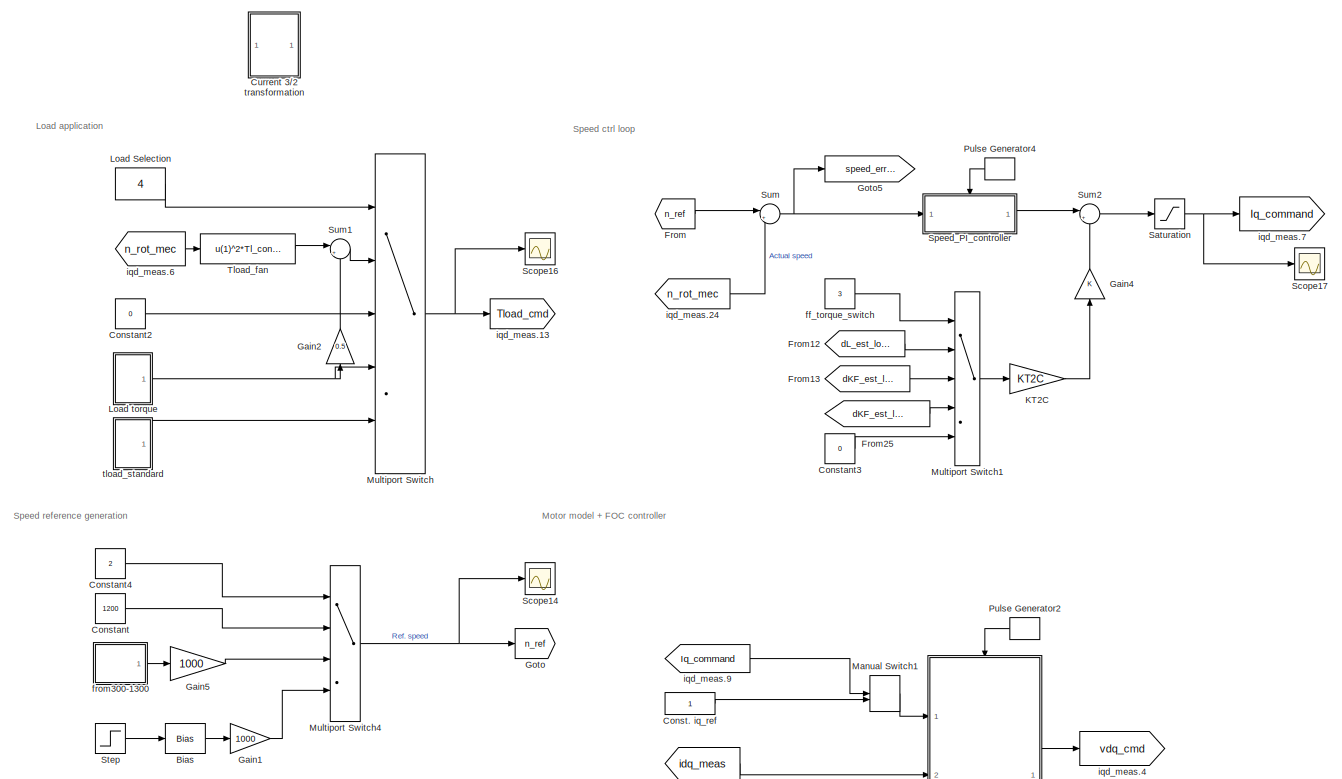
[diagram: root canvas - part 1/6, top left region]
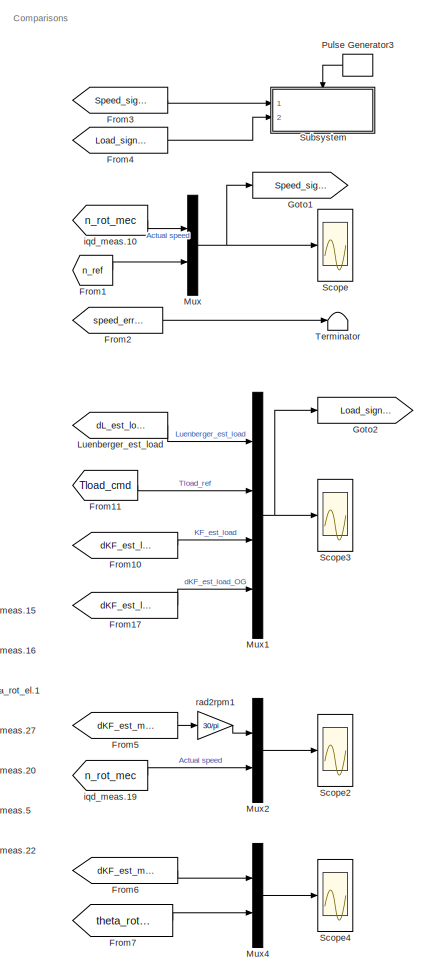
[diagram: root canvas - part 2/6, central region]
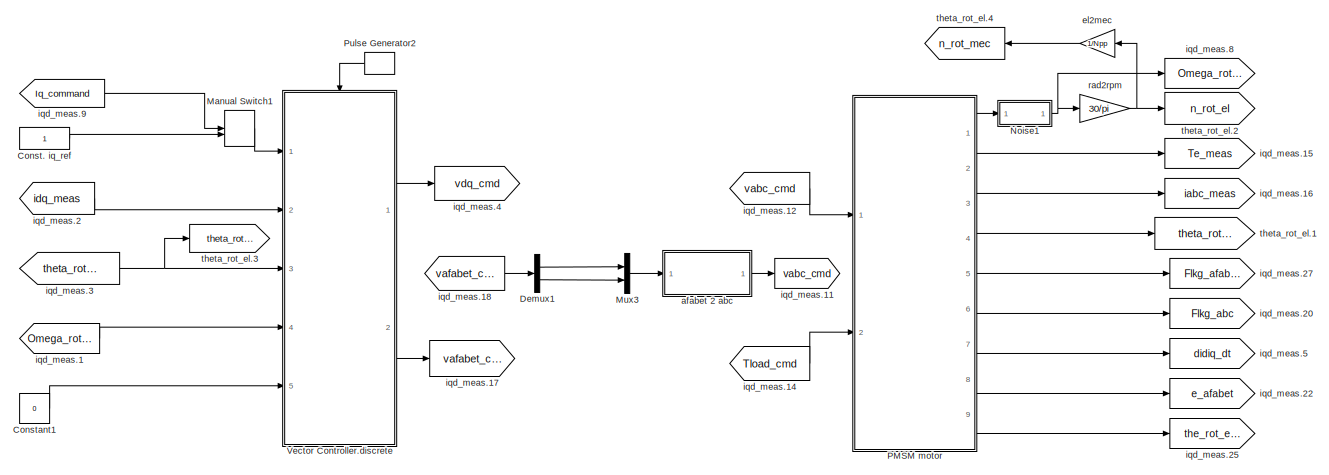
[diagram: root canvas - part 3/6, central region]
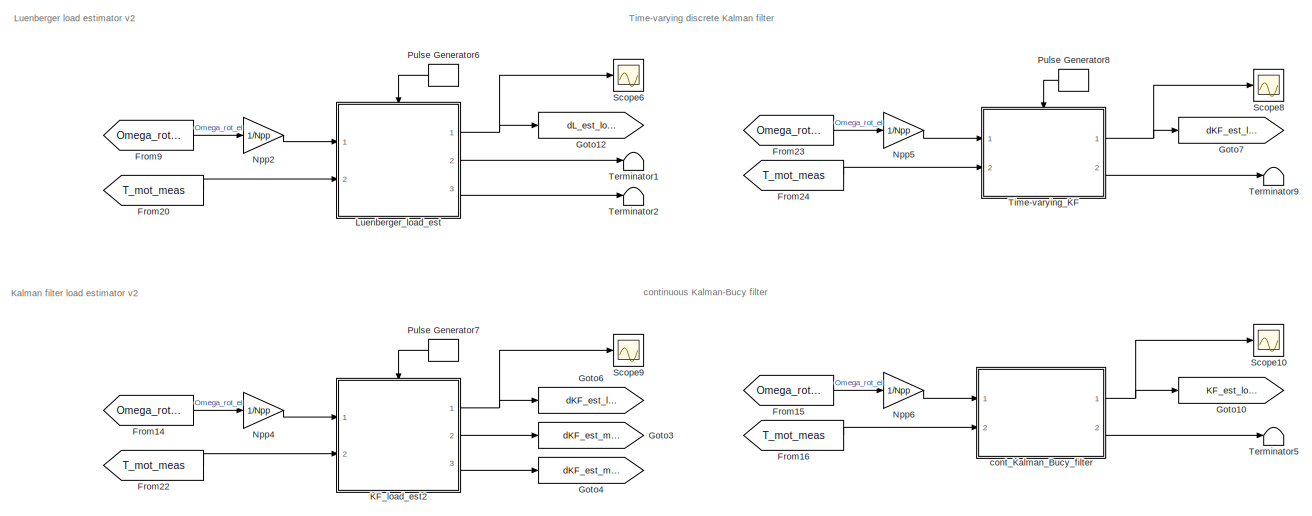
[diagram: root canvas - part 4/6, bottom left region]
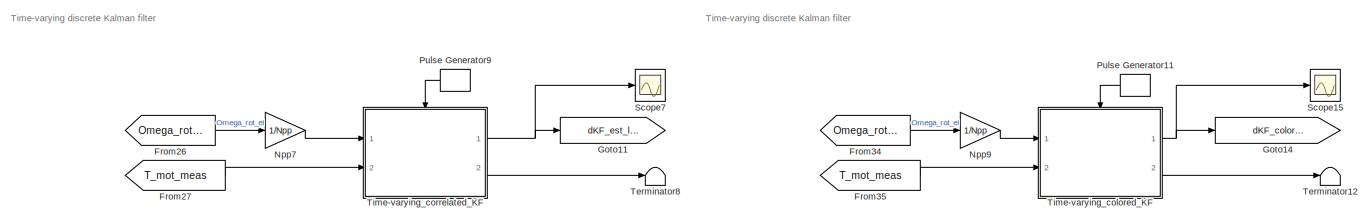
[diagram: root canvas - part 5/6, bottom right region]
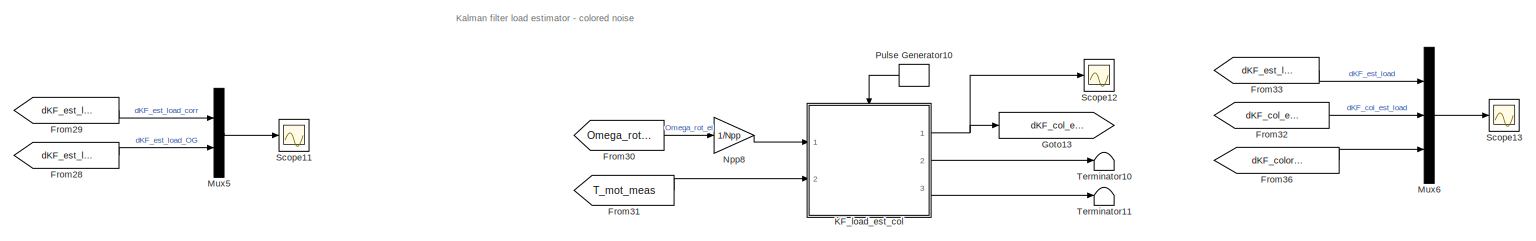
[diagram: root canvas - part 6/6, bottom right region]
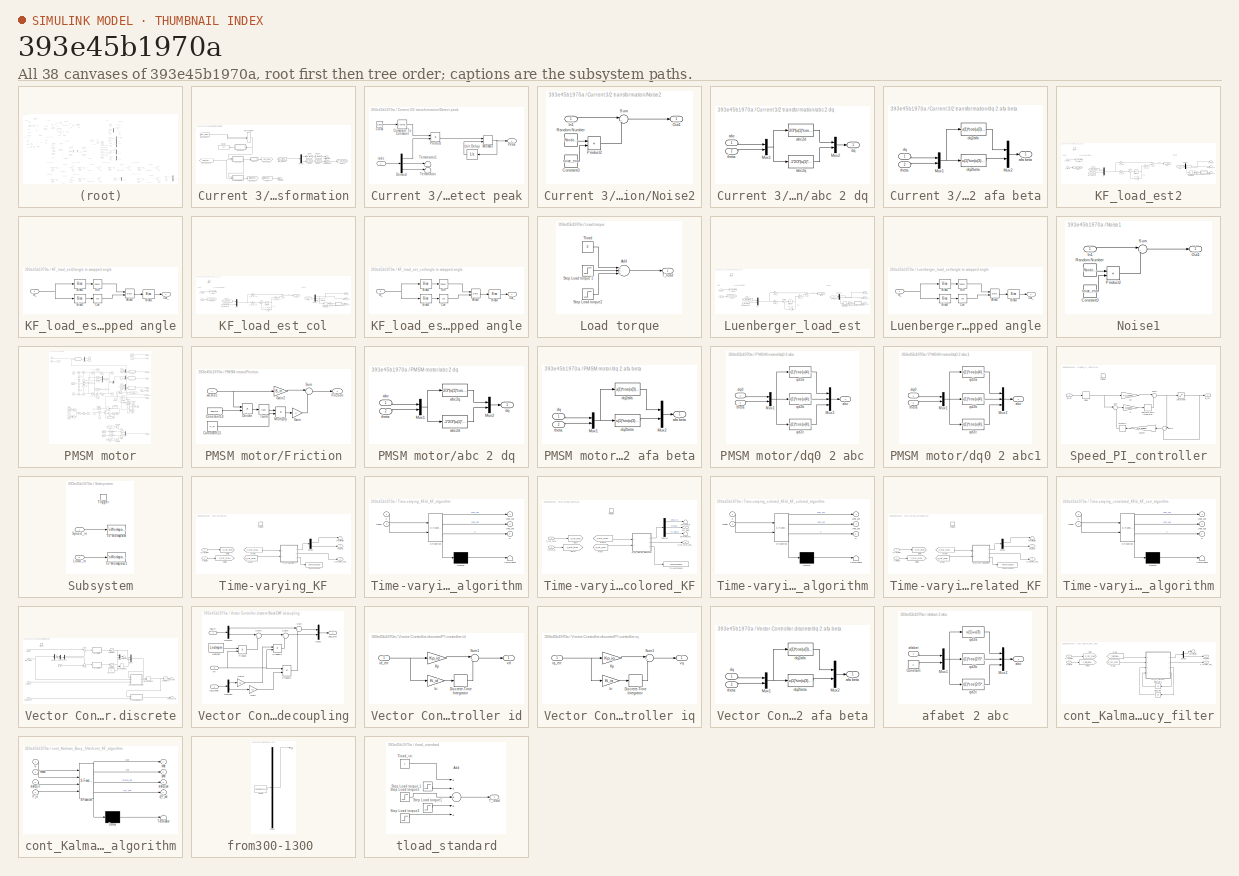
[diagram: thumbnail index - all 38 canvases of the model, root first then tree order]
MODEL slx_393e45b1970a
KIND model
CONFIG AbsTol = auto
CONFIG EnableMultiTasking = on
CONFIG FixedStep = 1/fs/2
CONFIG InitFcn = controllers\nmodel_parameters\nKT2C = 1 / (3/2) / (Npp*Lndmpm);\nKC2T = (3/2) * (Npp*Lndmpm);\nTload = 10; %ref load [Nm]\nnoise_ena = 1;\n\n
CONFIG MaxStep = 1/fs
CONFIG MinStep = auto
CONFIG RelTol = 1e-5
CONFIG SampleTimeConstraint = Unconstrained
CONFIG Solver = ode4
CONFIG SolverName = ode4
CONFIG StartTime = 0
CONFIG StopTime = 16
BLOCK [Bias] Bias
  Bias = 0.3
  SaturateOnIntegerOverflow = off
BLOCK [Constant] Const. iq_ref
BLOCK [Constant] Constant
  Value = 1200
BLOCK [Constant] Constant1
  Value = 0
BLOCK [Constant] Constant2
  Value = 0
BLOCK [Constant] Constant3
  Value = 0
BLOCK [Constant] Constant4
  Value = 2
BLOCK [SubSystem] Current 3//2 transformation
  Ports = []
  RequestExecContextInheritance = off
BLOCK [Demux] Current 3//2 transformation/Demux
  DisplayOption = bar
  Outputs = 2
  Ports = [1, 2]
BLOCK [SubSystem] Current 3//2 transformation/Detect peak
  Ports = [1, 1]
  RequestExecContextInheritance = off
BLOCK [Clock] Current 3//2 transformation/Detect peak/Clock
BLOCK [Reference] Current 3//2 transformation/Detect peak/Compare To Constant  REF=simulink/Logic and Bit
Operations/Compare
To Constant
  Ports = [1, 1]
  SourceBlock = simulink/Logic and Bit\nOperations/Compare\nTo Constant
  SourceProductBaseCode = SL
  SourceProductName = Simulink
  SourceType = Compare To Constant
BLOCK [Demux] Current 3//2 transformation/Detect peak/Demux1
  DisplayOption = bar
  Outputs = 3
  Ports = [1, 3]
BLOCK [MinMax] Current 3//2 transformation/Detect peak/MinMax
  Function = max
  InputSameDT = off
  Inputs = 2
  Ports = [2, 1]
  SaturateOnIntegerOverflow = off
BLOCK [Outport] Current 3//2 transformation/Detect peak/Peak
  IconDisplay = Port number
BLOCK [Product] Current 3//2 transformation/Detect peak/Product
  InputSameDT = off
  OutDataTypeStr = Inherit: Inherit via internal rule
  Ports = [2, 1]
  SaturateOnIntegerOverflow = off
BLOCK [Terminator] Current 3//2 transformation/Detect peak/Terminator
BLOCK [Terminator] Current 3//2 transformation/Detect peak/Terminator1
BLOCK [UnitDelay] Current 3//2 transformation/Detect peak/Unit Delay
  SampleTime = -1
BLOCK [Inport] Current 3//2 transformation/Detect peak/iabc
  IconDisplay = Port number
BLOCK [Display] Current 3//2 transformation/Display
  Decimation = 1
  Ports = [1]
BLOCK [From] Current 3//2 transformation/From
  GotoTag = iafabet_meas
  TagVisibility = global
BLOCK [From] Current 3//2 transformation/From14
  GotoTag = iq_meas
BLOCK [From] Current 3//2 transformation/From19
  GotoTag = id_meas
BLOCK [Goto] Current 3//2 transformation/Goto10
  GotoTag = T_mot_meas
  TagVisibility = global
BLOCK [Goto] Current 3//2 transformation/Goto8
  GotoTag = id_meas
BLOCK [Goto] Current 3//2 transformation/Goto9
  GotoTag = iq_meas
BLOCK [ManualSwitch] Current 3//2 transformation/Manual Switch7
  CurrentSetting = 0
BLOCK [SubSystem] Current 3//2 transformation/Noise2
  Ports = [1, 1]
  RequestExecContextInheritance = off
BLOCK [Constant] Current 3//2 transformation/Noise2/Constant3
  Value = noise_ena
BLOCK [Inport] Current 3//2 transformation/Noise2/In1
  IconDisplay = Port number
BLOCK [Outport] Current 3//2 transformation/Noise2/Out1
  IconDisplay = Port number
BLOCK [Product] Current 3//2 transformation/Noise2/Product2
  InputSameDT = off
  OutDataTypeStr = Inherit: Inherit via internal rule
  Ports = [2, 1]
  RndMeth = Floor
  SaturateOnIntegerOverflow = off
BLOCK [RandomNumber] Current 3//2 transformation/Noise2/Random Number
  SampleTime = ts/2
  Seed = 21874
  Variance = 0.005^2
BLOCK [Sum] Current 3//2 transformation/Noise2/Sum
  IconShape = round
  InputSameDT = off
  Inputs = |++
  OutDataTypeStr = Inherit: Inherit via internal rule
  Ports = [2, 1]
  SaturateOnIntegerOverflow = off
BLOCK [Terminator] Current 3//2 transformation/Terminator
BLOCK [Terminator] Current 3//2 transformation/Terminator1
BLOCK [SubSystem] Current 3//2 transformation/abc 2 dq
  Ports = [2, 1]
  RequestExecContextInheritance = off
BLOCK [Mux] Current 3//2 transformation/abc 2 dq/Mux1
  DisplayOption = bar
  Inputs = 2
  Ports = [2, 1]
BLOCK [Mux] Current 3//2 transformation/abc 2 dq/Mux2
  DisplayOption = bar
  Inputs = 2
  Ports = [2, 1]
BLOCK [Inport] Current 3//2 transformation/abc 2 dq/abc
  IconDisplay = Port number
BLOCK [Fcn] Current 3//2 transformation/abc 2 dq/abc2d
  Expr = 2/3*(u(1)*cos(u(4))+u(2)*cos(u(4)-2*pi/3)+u(3)*cos(u(4)-4*pi/3))
BLOCK [Fcn] Current 3//2 transformation/abc 2 dq/abc2q
  Expr = -1*2/3*(u(1)*sin(u(4))+u(2)*sin(u(4)-2*pi/3)+u(3)*sin(u(4)-4*pi/3))
BLOCK [Outport] Current 3//2 transformation/abc 2 dq/dq
  IconDisplay = Port number
BLOCK [Inport] Current 3//2 transformation/abc 2 dq/theta
  IconDisplay = Port number
  Port = 2
BLOCK [Gain] Current 3//2 transformation/current to torque
  Gain = 1.5*Npp*Lndmpm
  OutDataTypeStr = Inherit: Inherit via internal rule
  ParamDataTypeStr = Inherit: Inherit via internal rule
  SaturateOnIntegerOverflow = off
BLOCK [SubSystem] Current 3//2 transformation/dq 2 afa beta
  Ports = [2, 1]
  RequestExecContextInheritance = off
BLOCK [Mux] Current 3//2 transformation/dq 2 afa beta/Mux1
  DisplayOption = bar
  Inputs = 2
  Ports = [2, 1]
BLOCK [Mux] Current 3//2 transformation/dq 2 afa beta/Mux2
  DisplayOption = bar
  Inputs = 2
  Ports = [2, 1]
BLOCK [Outport] Current 3//2 transformation/dq 2 afa beta/afa beta
  IconDisplay = Port number
BLOCK [Inport] Current 3//2 transformation/dq 2 afa beta/dq
  IconDisplay = Port number
BLOCK [Fcn] Current 3//2 transformation/dq 2 afa beta/dq2afa
  Expr = u(1)*cos(u(3))-u(2)*sin(u(3))
BLOCK [Fcn] Current 3//2 transformation/dq 2 afa beta/dq2beta
  Expr = u(1)*sin(u(3))+u(2)*cos(u(3))
BLOCK [Inport] Current 3//2 transformation/dq 2 afa beta/theta
  IconDisplay = Port number
  Port = 2
BLOCK [Goto] Current 3//2 transformation/iqd_meas.1
  GotoTag = idq_meas
  TagVisibility = global
BLOCK [From] Current 3//2 transformation/iqd_meas.2
  CloseFcn = tagdialog Close
  GotoTag = idq_meas
  TagVisibility = global
BLOCK [From] Current 3//2 transformation/iqd_meas.20
  CloseFcn = tagdialog Close
  GotoTag = theta_rot_el
  TagVisibility = global
BLOCK [From] Current 3//2 transformation/iqd_meas.21
  CloseFcn = tagdialog Close
  GotoTag = iabc_meas
  TagVisibility = global
BLOCK [Goto] Current 3//2 transformation/iqd_meas.7
  GotoTag = iafabet_meas
  TagVisibility = global
BLOCK [Demux] Demux1
  DisplayOption = bar
  Outputs = 2
  Ports = [1, 2]
BLOCK [From] From
  GotoTag = n_ref
BLOCK [From] From1
  GotoTag = n_ref
BLOCK [From] From10
  GotoTag = dKF_est_load
BLOCK [From] From11
  GotoTag = Tload_cmd
BLOCK [From] From12
  GotoTag = dL_est_load
BLOCK [From] From13
  GotoTag = dKF_est_load
BLOCK [From] From14
  GotoTag = Omega_rot_el
BLOCK [From] From15
  GotoTag = Omega_rot_el
BLOCK [From] From16
  GotoTag = T_mot_meas
  TagVisibility = global
BLOCK [From] From17
  GotoTag = dKF_est_load_OG
BLOCK [From] From2
  GotoTag = speed_error
BLOCK [From] From20
  GotoTag = T_mot_meas
  TagVisibility = global
BLOCK [From] From22
  GotoTag = T_mot_meas
  TagVisibility = global
BLOCK [From] From23
  GotoTag = Omega_rot_el
BLOCK [From] From24
  GotoTag = T_mot_meas
  TagVisibility = global
BLOCK [From] From25
  GotoTag = dKF_est_load_OG
BLOCK [From] From26
  GotoTag = Omega_rot_el
BLOCK [From] From27
  GotoTag = T_mot_meas
  TagVisibility = global
BLOCK [From] From28
  GotoTag = dKF_est_load_OG
BLOCK [From] From29
  GotoTag = dKF_est_load_corr
BLOCK [From] From3
  GotoTag = Speed_signals
BLOCK [From] From30
  GotoTag = Omega_rot_el
BLOCK [From] From31
  GotoTag = T_mot_meas
  TagVisibility = global
BLOCK [From] From32
  GotoTag = dKF_col_est_load
BLOCK [From] From33
  GotoTag = dKF_est_load
BLOCK [From] From34
  GotoTag = Omega_rot_el
BLOCK [From] From35
  GotoTag = T_mot_meas
  TagVisibility = global
BLOCK [From] From36
  GotoTag = dKF_colored_est_load
BLOCK [From] From4
  GotoTag = Load_signals
BLOCK [From] From5
  GotoTag = dKF_est_motasp
BLOCK [From] From6
  GotoTag = dKF_est_motang
BLOCK [From] From7
  GotoTag = theta_rot_el_meas
  TagVisibility = global
BLOCK [From] From9
  GotoTag = Omega_rot_el
BLOCK [Gain] Gain1
  Gain = 1000
  OutDataTypeStr = Inherit: Inherit via internal rule
  ParamDataTypeStr = Inherit: Inherit via internal rule
  SaturateOnIntegerOverflow = off
BLOCK [Gain] Gain2
  Gain = 0.5
  OutDataTypeStr = Inherit: Inherit via internal rule
  ParamDataTypeStr = Inherit: Inherit via internal rule
  SaturateOnIntegerOverflow = off
BLOCK [Gain] Gain4
  OutDataTypeStr = Inherit: Inherit via internal rule
  ParamDataTypeStr = Inherit: Inherit via internal rule
  SaturateOnIntegerOverflow = off
BLOCK [Gain] Gain5
  Gain = 1000
  OutDataTypeStr = Inherit: Inherit via internal rule
  ParamDataTypeStr = Inherit: Inherit via internal rule
  SaturateOnIntegerOverflow = off
BLOCK [Goto] Goto
  GotoTag = n_ref
BLOCK [Goto] Goto1
  GotoTag = Speed_signals
BLOCK [Goto] Goto10
  GotoTag = KF_est_load_OG
BLOCK [Goto] Goto11
  GotoTag = dKF_est_load_corr
BLOCK [Goto] Goto12
  GotoTag = dL_est_load
BLOCK [Goto] Goto13
  GotoTag = dKF_col_est_load
BLOCK [Goto] Goto14
  GotoTag = dKF_colored_est_load
BLOCK [Goto] Goto2
  GotoTag = Load_signals
BLOCK [Goto] Goto3
  GotoTag = dKF_est_motasp
BLOCK [Goto] Goto4
  GotoTag = dKF_est_motang
BLOCK [Goto] Goto5
  GotoTag = speed_error
BLOCK [Goto] Goto6
  GotoTag = dKF_est_load
BLOCK [Goto] Goto7
  GotoTag = dKF_est_load_OG
BLOCK [SubSystem] KF_load_est2
  Ports = [2, 3, 0, 1]
  RequestExecContextInheritance = off
BLOCK [Demux] KF_load_est2/Demux2
  DisplayOption = bar
  Outputs = 2
  Ports = [1, 2]
BLOCK [DiscreteIntegrator] KF_load_est2/Discrete-Time Integrator1
  ICPrevOutput = DiscIntNeverNeededParam
  ICPrevScaledInput = DiscIntNeverNeededParam
  Ports = [1, 1]
  SampleTime = -1
BLOCK [From] KF_load_est2/From1
  GotoTag = y_est
BLOCK [From] KF_load_est2/From21
  GotoTag = T_mot_meas_local
BLOCK [Goto] KF_load_est2/Goto
  GotoTag = n_rot_mec
BLOCK [Goto] KF_load_est2/Goto1
  GotoTag = T_mot_meas_local
BLOCK [Goto] KF_load_est2/Goto7
  GotoTag = y_est
BLOCK [Outport] KF_load_est2/MotAng_est
  IconDisplay = Port number
  Port = 3
BLOCK [Outport] KF_load_est2/MotAsp_est
  IconDisplay = Port number
  Port = 2
BLOCK [Mux] KF_load_est2/Mux
  DisplayOption = bar
  Inputs = 2
  Ports = [2, 1]
BLOCK [Gain] KF_load_est2/Npp1
  Gain = Npp
  OutDataTypeStr = Inherit: Inherit via internal rule
  ParamDataTypeStr = Inherit: Inherit via internal rule
  SaturateOnIntegerOverflow = off
BLOCK [Sum] KF_load_est2/Sum7
  InputSameDT = off
  OutDataTypeStr = Inherit: Inherit via internal rule
  Ports = [2, 1]
  SaturateOnIntegerOverflow = off
BLOCK [Sum] KF_load_est2/Sum9
  IconShape = round
  InputSameDT = off
  Inputs = |++
  OutDataTypeStr = Inherit: Inherit via internal rule
  Ports = [2, 1]
  SaturateOnIntegerOverflow = off
BLOCK [Inport] KF_load_est2/T_mot_in
  IconDisplay = Port number
  Port = 2
BLOCK [TriggerPort] KF_load_est2/Trigger
  Ports = []
  StatesWhenEnabling = held
  VariantControl = (inherit)
BLOCK [UnitDelay] KF_load_est2/Unit Delay
  InputProcessing = Elements as channels (sample based)
  SampleTime = -1
BLOCK [SubSystem] KF_load_est2/angle to wrapped angle
  Ports = [1, 1]
  RequestExecContextInheritance = off
BLOCK [Trigonometry] KF_load_est2/angle to wrapped angle/Atan2
  Operator = atan2
  Ports = [2, 1]
BLOCK [Bias] KF_load_est2/angle to wrapped angle/Bias1
  Bias = -pi
  SaturateOnIntegerOverflow = off
BLOCK [Bias] KF_load_est2/angle to wrapped angle/Bias2
  Bias = -pi
  SaturateOnIntegerOverflow = off
BLOCK [Bias] KF_load_est2/angle to wrapped angle/Bias3
  Bias = pi
  SaturateOnIntegerOverflow = off
BLOCK [Trigonometry] KF_load_est2/angle to wrapped angle/Cos
  Operator = cos
  Ports = [1, 1]
BLOCK [Inport] KF_load_est2/angle to wrapped angle/In_
  IconDisplay = Port number
BLOCK [Outport] KF_load_est2/angle to wrapped angle/Out_
  IconDisplay = Port number
BLOCK [Trigonometry] KF_load_est2/angle to wrapped angle/Sin
  Ports = [1, 1]
BLOCK [Gain] KF_load_est2/d_A_KF
  Gain = d_A_KF
  Multiplication = Matrix(K*u)
  OutDataTypeStr = Inherit: Inherit via internal rule
  ParamDataTypeStr = Inherit: Inherit via internal rule
  SaturateOnIntegerOverflow = off
BLOCK [Gain] KF_load_est2/d_B_KF
  Gain = d_B_KF
  Multiplication = Matrix(K*u)
  OutDataTypeStr = Inherit: Inherit via internal rule
  ParamDataTypeStr = Inherit: Inherit via internal rule
  SaturateOnIntegerOverflow = off
BLOCK [Gain] KF_load_est2/d_C_KF
  Gain = d_C_KF
  Multiplication = Matrix(K*u)
  OutDataTypeStr = Inherit: Inherit via internal rule
  ParamDataTypeStr = Inherit: Inherit via internal rule
  SaturateOnIntegerOverflow = off
BLOCK [Gain] KF_load_est2/d_D_KF
  Gain = d_D_KF
  Multiplication = Matrix(K*u)
  OutDataTypeStr = Inherit: Inherit via internal rule
  ParamDataTypeStr = Inherit: Inherit via internal rule
  SaturateOnIntegerOverflow = off
BLOCK [Outport] KF_load_est2/est_load
  IconDisplay = Port number
BLOCK [From] KF_load_est2/iqd_meas.30
  CloseFcn = tagdialog Close
  GotoTag = n_rot_mec
BLOCK [Inport] KF_load_est2/n_rot_mec
  IconDisplay = Port number
BLOCK [SubSystem] KF_load_est_col
  Ports = [2, 3, 0, 1]
  RequestExecContextInheritance = off
BLOCK [Demux] KF_load_est_col/Demux2
  DisplayOption = bar
  Outputs = 3
  Ports = [1, 3]
BLOCK [DiscreteIntegrator] KF_load_est_col/Discrete-Time Integrator1
  ICPrevOutput = DiscIntNeverNeededParam
  ICPrevScaledInput = DiscIntNeverNeededParam
  Ports = [1, 1]
  SampleTime = -1
BLOCK [From] KF_load_est_col/From1
  GotoTag = y_est
BLOCK [From] KF_load_est_col/From21
  GotoTag = T_mot_meas_local
BLOCK [Goto] KF_load_est_col/Goto
  GotoTag = n_rot_mec
BLOCK [Goto] KF_load_est_col/Goto1
  GotoTag = T_mot_meas_local
BLOCK [Goto] KF_load_est_col/Goto7
  GotoTag = y_est
BLOCK [Outport] KF_load_est_col/MotAng_est
  IconDisplay = Port number
  Port = 3
BLOCK [Outport] KF_load_est_col/MotAsp_est
  IconDisplay = Port number
  Port = 2
BLOCK [Mux] KF_load_est_col/Mux
  DisplayOption = bar
  Inputs = 2
  Ports = [2, 1]
BLOCK [Gain] KF_load_est_col/Npp1
  Gain = Npp
  OutDataTypeStr = Inherit: Inherit via internal rule
  ParamDataTypeStr = Inherit: Inherit via internal rule
  SaturateOnIntegerOverflow = off
BLOCK [Sum] KF_load_est_col/Sum7
  InputSameDT = off
  OutDataTypeStr = Inherit: Inherit via internal rule
  Ports = [2, 1]
  SaturateOnIntegerOverflow = off
BLOCK [Sum] KF_load_est_col/Sum9
  IconShape = round
  InputSameDT = off
  Inputs = |++
  OutDataTypeStr = Inherit: Inherit via internal rule
  Ports = [2, 1]
  SaturateOnIntegerOverflow = off
BLOCK [Inport] KF_load_est_col/T_mot_in
  IconDisplay = Port number
  Port = 2
BLOCK [Terminator] KF_load_est_col/Terminator1
BLOCK [TriggerPort] KF_load_est_col/Trigger
  Ports = []
  StatesWhenEnabling = held
  VariantControl = (inherit)
BLOCK [UnitDelay] KF_load_est_col/Unit Delay
  InputProcessing = Elements as channels (sample based)
  SampleTime = -1
BLOCK [SubSystem] KF_load_est_col/angle to wrapped angle
  Ports = [1, 1]
  RequestExecContextInheritance = off
BLOCK [Trigonometry] KF_load_est_col/angle to wrapped angle/Atan2
  Operator = atan2
  Ports = [2, 1]
BLOCK [Bias] KF_load_est_col/angle to wrapped angle/Bias1
  Bias = -pi
  SaturateOnIntegerOverflow = off
BLOCK [Bias] KF_load_est_col/angle to wrapped angle/Bias2
  Bias = -pi
  SaturateOnIntegerOverflow = off
BLOCK [Bias] KF_load_est_col/angle to wrapped angle/Bias3
  Bias = pi
  SaturateOnIntegerOverflow = off
BLOCK [Trigonometry] KF_load_est_col/angle to wrapped angle/Cos
  Operator = cos
  Ports = [1, 1]
BLOCK [Inport] KF_load_est_col/angle to wrapped angle/In_
  IconDisplay = Port number
BLOCK [Outport] KF_load_est_col/angle to wrapped angle/Out_
  IconDisplay = Port number
BLOCK [Trigonometry] KF_load_est_col/angle to wrapped angle/Sin
  Ports = [1, 1]
BLOCK [Gain] KF_load_est_col/d_A_KF_col
  Gain = d_A_KF_col
  Multiplication = Matrix(K*u)
  OutDataTypeStr = Inherit: Inherit via internal rule
  ParamDataTypeStr = Inherit: Inherit via internal rule
  SaturateOnIntegerOverflow = off
BLOCK [Gain] KF_load_est_col/d_B_KF_col
  Gain = d_B_KF_col
  Multiplication = Matrix(K*u)
  OutDataTypeStr = Inherit: Inherit via internal rule
  ParamDataTypeStr = Inherit: Inherit via internal rule
  SaturateOnIntegerOverflow = off
BLOCK [Gain] KF_load_est_col/d_C_KF_col
  Gain = d_C_KF_col
  Multiplication = Matrix(K*u)
  OutDataTypeStr = Inherit: Inherit via internal rule
  ParamDataTypeStr = Inherit: Inherit via internal rule
  SaturateOnIntegerOverflow = off
BLOCK [Gain] KF_load_est_col/d_D_KF_col
  Gain = d_D_KF_col
  Multiplication = Matrix(K*u)
  OutDataTypeStr = Inherit: Inherit via internal rule
  ParamDataTypeStr = Inherit: Inherit via internal rule
  SaturateOnIntegerOverflow = off
BLOCK [Outport] KF_load_est_col/est_load
  IconDisplay = Port number
BLOCK [From] KF_load_est_col/iqd_meas.30
  CloseFcn = tagdialog Close
  GotoTag = n_rot_mec
BLOCK [Inport] KF_load_est_col/n_rot_mec
  IconDisplay = Port number
BLOCK [Gain] KT2C
  Gain = KT2C
  OutDataTypeStr = Inherit: Inherit via internal rule
  ParamDataTypeStr = Inherit: Inherit via internal rule
  SaturateOnIntegerOverflow = off
BLOCK [Constant] Load Selection
  Value = 4
BLOCK [SubSystem] Load torque
  Ports = [0, 1]
  RequestExecContextInheritance = off
BLOCK [Sum] Load torque/Add
  InputSameDT = off
  Inputs = +++
  OutDataTypeStr = Inherit: Inherit via internal rule
  Ports = [3, 1]
  SaturateOnIntegerOverflow = off
BLOCK [Step] Load torque/Step Load torque 1
  After = Tload
  SampleTime = 0
  Time = 1.5
BLOCK [Step] Load torque/Step Load torque2
  After = -Tload
  SampleTime = 0
  Time = 2
BLOCK [Outport] Load torque/T_load
  IconDisplay = Port number
BLOCK [Constant] Load torque/Tload
  Value = 0
BLOCK [From] Luenberger_est_load
  GotoTag = dL_est_load
BLOCK [SubSystem] Luenberger_load_est
  Ports = [2, 3, 0, 1]
  RequestExecContextInheritance = off
BLOCK [Demux] Luenberger_load_est/Demux2
  DisplayOption = bar
  Outputs = 2
  Ports = [1, 2]
BLOCK [DiscreteIntegrator] Luenberger_load_est/Discrete-Time Integrator1
  ICPrevOutput = DiscIntNeverNeededParam
  ICPrevScaledInput = DiscIntNeverNeededParam
  Ports = [1, 1]
  SampleTime = -1
BLOCK [From] Luenberger_load_est/From1
  GotoTag = y_est
BLOCK [From] Luenberger_load_est/From21
  GotoTag = T_mot_meas_local
BLOCK [Goto] Luenberger_load_est/Goto
  GotoTag = n_rot_mec
BLOCK [Goto] Luenberger_load_est/Goto1
  GotoTag = T_mot_meas_local
BLOCK [Goto] Luenberger_load_est/Goto7
  GotoTag = y_est
BLOCK [Outport] Luenberger_load_est/MotAng_est
  IconDisplay = Port number
  Port = 3
BLOCK [Outport] Luenberger_load_est/MotAsp_est
  IconDisplay = Port number
  Port = 2
BLOCK [Mux] Luenberger_load_est/Mux
  DisplayOption = bar
  Inputs = 2
  Ports = [2, 1]
BLOCK [Gain] Luenberger_load_est/Npp1
  Gain = Npp
  OutDataTypeStr = Inherit: Inherit via internal rule
  ParamDataTypeStr = Inherit: Inherit via internal rule
  SaturateOnIntegerOverflow = off
BLOCK [Sum] Luenberger_load_est/Sum7
  InputSameDT = off
  OutDataTypeStr = Inherit: Inherit via internal rule
  Ports = [2, 1]
  SaturateOnIntegerOverflow = off
BLOCK [Sum] Luenberger_load_est/Sum9
  IconShape = round
  InputSameDT = off
  Inputs = |++
  OutDataTypeStr = Inherit: Inherit via internal rule
  Ports = [2, 1]
  SaturateOnIntegerOverflow = off
BLOCK [Inport] Luenberger_load_est/T_mot_in
  IconDisplay = Port number
  Port = 2
BLOCK [TriggerPort] Luenberger_load_est/Trigger
  Ports = []
  StatesWhenEnabling = held
  VariantControl = (inherit)
BLOCK [UnitDelay] Luenberger_load_est/Unit Delay
  InputProcessing = Elements as channels (sample based)
  SampleTime = -1
BLOCK [SubSystem] Luenberger_load_est/angle to wrapped angle
  Ports = [1, 1]
  RequestExecContextInheritance = off
BLOCK [Trigonometry] Luenberger_load_est/angle to wrapped angle/Atan2
  Operator = atan2
  Ports = [2, 1]
BLOCK [Bias] Luenberger_load_est/angle to wrapped angle/Bias1
  Bias = -pi
  SaturateOnIntegerOverflow = off
BLOCK [Bias] Luenberger_load_est/angle to wrapped angle/Bias2
  Bias = -pi
  SaturateOnIntegerOverflow = off
BLOCK [Bias] Luenberger_load_est/angle to wrapped angle/Bias3
  Bias = pi
  SaturateOnIntegerOverflow = off
BLOCK [Trigonometry] Luenberger_load_est/angle to wrapped angle/Cos
  Operator = cos
  Ports = [1, 1]
BLOCK [Inport] Luenberger_load_est/angle to wrapped angle/In_
  IconDisplay = Port number
BLOCK [Outport] Luenberger_load_est/angle to wrapped angle/Out_
  IconDisplay = Port number
BLOCK [Trigonometry] Luenberger_load_est/angle to wrapped angle/Sin
  Ports = [1, 1]
BLOCK [Gain] Luenberger_load_est/d_A_e
  Gain = d_A_e
  Multiplication = Matrix(K*u)
  OutDataTypeStr = Inherit: Inherit via internal rule
  ParamDataTypeStr = Inherit: Inherit via internal rule
  SaturateOnIntegerOverflow = off
BLOCK [Gain] Luenberger_load_est/d_B_e
  Gain = d_B_e
  Multiplication = Matrix(K*u)
  OutDataTypeStr = Inherit: Inherit via internal rule
  ParamDataTypeStr = Inherit: Inherit via internal rule
  SaturateOnIntegerOverflow = off
BLOCK [Gain] Luenberger_load_est/d_C_e
  Gain = d_C_e
  Multiplication = Matrix(K*u)
  OutDataTypeStr = Inherit: Inherit via internal rule
  ParamDataTypeStr = Inherit: Inherit via internal rule
  SaturateOnIntegerOverflow = off
BLOCK [Gain] Luenberger_load_est/d_D_e
  Gain = d_D_e
  Multiplication = Matrix(K*u)
  OutDataTypeStr = Inherit: Inherit via internal rule
  ParamDataTypeStr = Inherit: Inherit via internal rule
  SaturateOnIntegerOverflow = off
BLOCK [Outport] Luenberger_load_est/est_load
  IconDisplay = Port number
BLOCK [From] Luenberger_load_est/iqd_meas.30
  CloseFcn = tagdialog Close
  GotoTag = n_rot_mec
BLOCK [Inport] Luenberger_load_est/n_rot_mec
  IconDisplay = Port number
BLOCK [ManualSwitch] Manual Switch1
BLOCK [MultiPortSwitch] Multiport Switch
  InputSameDT = off
  Inputs = 4
  Ports = [5, 1]
  SaturateOnIntegerOverflow = off
BLOCK [MultiPortSwitch] Multiport Switch1
  InputSameDT = off
  Inputs = 4
  Ports = [5, 1]
  SaturateOnIntegerOverflow = off
BLOCK [MultiPortSwitch] Multiport Switch4
  InputSameDT = off
  Ports = [4, 1]
  SaturateOnIntegerOverflow = off
BLOCK [Mux] Mux
  DisplayOption = bar
  Inputs = 2
  Ports = [2, 1]
BLOCK [Mux] Mux1
  DisplayOption = bar
  Ports = [4, 1]
BLOCK [Mux] Mux2
  DisplayOption = bar
  Inputs = 2
  Ports = [2, 1]
BLOCK [Mux] Mux3
  DisplayOption = bar
  Inputs = 2
  Ports = [2, 1]
BLOCK [Mux] Mux4
  DisplayOption = bar
  Inputs = 2
  Ports = [2, 1]
BLOCK [Mux] Mux5
  DisplayOption = bar
  Inputs = 2
  Ports = [2, 1]
BLOCK [Mux] Mux6
  DisplayOption = bar
  Inputs = 3
  Ports = [3, 1]
BLOCK [SubSystem] Noise1
  Ports = [1, 1]
  RequestExecContextInheritance = off
BLOCK [Constant] Noise1/Constant3
  Value = noise_ena
BLOCK [Inport] Noise1/In1
  IconDisplay = Port number
BLOCK [Outport] Noise1/Out1
  IconDisplay = Port number
BLOCK [Product] Noise1/Product2
  InputSameDT = off
  OutDataTypeStr = Inherit: Inherit via internal rule
  Ports = [2, 1]
  RndMeth = Floor
  SaturateOnIntegerOverflow = off
BLOCK [RandomNumber] Noise1/Random Number
  SampleTime = ts/2
  Seed = 86241
  Variance = 0.1^2
BLOCK [Sum] Noise1/Sum
  IconShape = round
  InputSameDT = off
  Inputs = |++
  OutDataTypeStr = Inherit: Inherit via internal rule
  Ports = [2, 1]
  SaturateOnIntegerOverflow = off
BLOCK [Gain] Npp2
  Gain = 1/Npp
  OutDataTypeStr = Inherit: Inherit via internal rule
  ParamDataTypeStr = Inherit: Inherit via internal rule
  SaturateOnIntegerOverflow = off
BLOCK [Gain] Npp4
  Gain = 1/Npp
  OutDataTypeStr = Inherit: Inherit via internal rule
  ParamDataTypeStr = Inherit: Inherit via internal rule
  SaturateOnIntegerOverflow = off
BLOCK [Gain] Npp5
  Gain = 1/Npp
  OutDataTypeStr = Inherit: Inherit via internal rule
  ParamDataTypeStr = Inherit: Inherit via internal rule
  SaturateOnIntegerOverflow = off
BLOCK [Gain] Npp6
  Gain = 1/Npp
  OutDataTypeStr = Inherit: Inherit via internal rule
  ParamDataTypeStr = Inherit: Inherit via internal rule
  SaturateOnIntegerOverflow = off
BLOCK [Gain] Npp7
  Gain = 1/Npp
  OutDataTypeStr = Inherit: Inherit via internal rule
  ParamDataTypeStr = Inherit: Inherit via internal rule
  SaturateOnIntegerOverflow = off
BLOCK [Gain] Npp8
  Gain = 1/Npp
  OutDataTypeStr = Inherit: Inherit via internal rule
  ParamDataTypeStr = Inherit: Inherit via internal rule
  SaturateOnIntegerOverflow = off
BLOCK [Gain] Npp9
  Gain = 1/Npp
  OutDataTypeStr = Inherit: Inherit via internal rule
  ParamDataTypeStr = Inherit: Inherit via internal rule
  SaturateOnIntegerOverflow = off
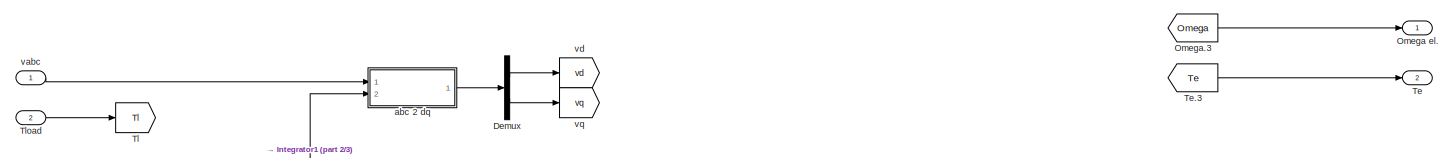
[diagram: PMSM motor - part 1/3, full width, top band]
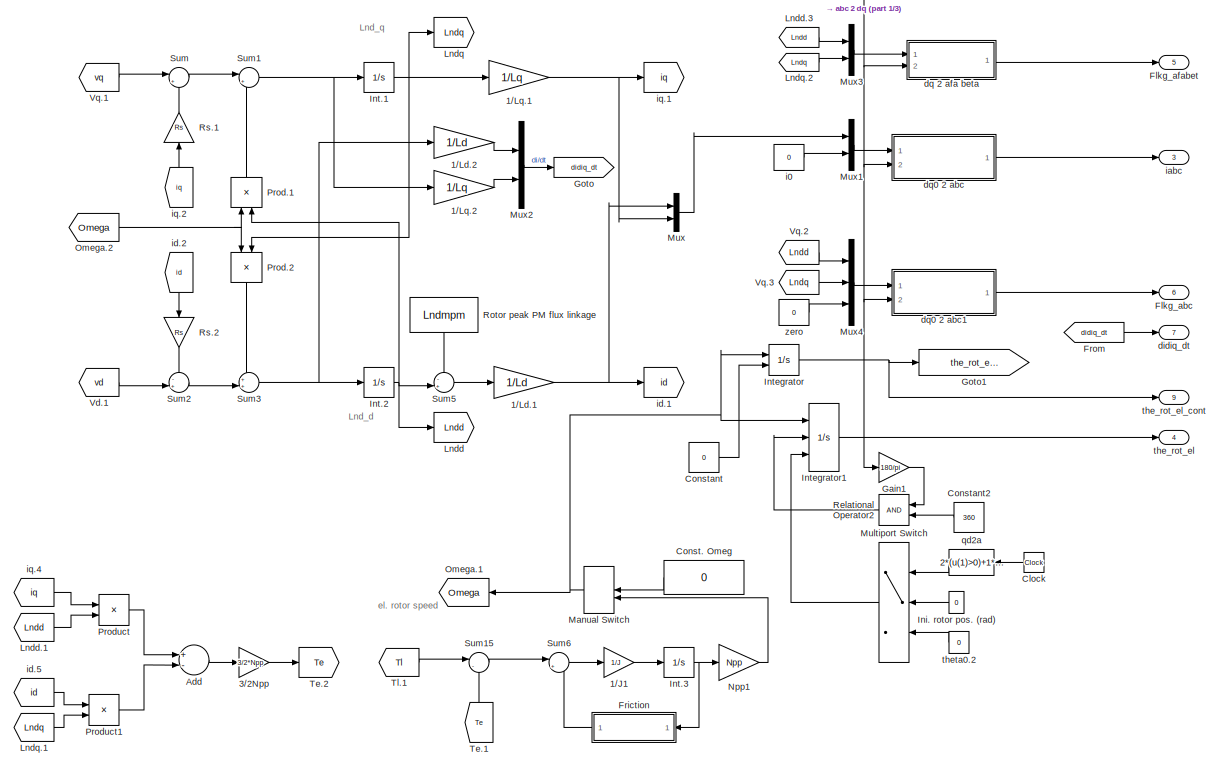
[diagram: PMSM motor - part 2/3, full width, middle band]
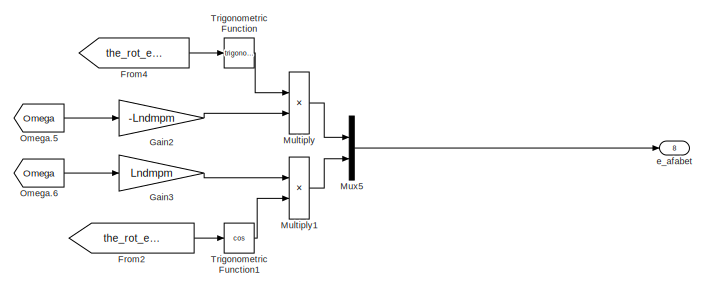
[diagram: PMSM motor - part 3/3, bottom right region]
BLOCK [SubSystem] PMSM motor
  Ports = [2, 9]
  RequestExecContextInheritance = off
BLOCK [Gain] PMSM motor/1//J1
  Gain = 1/J
  OutDataTypeStr = Inherit: Inherit via internal rule
  ParamDataTypeStr = Inherit: Inherit via internal rule
  SaturateOnIntegerOverflow = off
BLOCK [Gain] PMSM motor/1//Ld.1
  Gain = 1/Ld
  OutDataTypeStr = Inherit: Inherit via internal rule
  ParamDataTypeStr = Inherit: Inherit via internal rule
  SaturateOnIntegerOverflow = off
BLOCK [Gain] PMSM motor/1//Ld.2
  Gain = 1/Ld
  OutDataTypeStr = Inherit: Inherit via internal rule
  ParamDataTypeStr = Inherit: Inherit via internal rule
  SaturateOnIntegerOverflow = off
BLOCK [Gain] PMSM motor/1//Lq.1
  Gain = 1/Lq
  OutDataTypeStr = Inherit: Inherit via internal rule
  ParamDataTypeStr = Inherit: Inherit via internal rule
  SaturateOnIntegerOverflow = off
BLOCK [Gain] PMSM motor/1//Lq.2
  Gain = 1/Lq
  OutDataTypeStr = Inherit: Inherit via internal rule
  ParamDataTypeStr = Inherit: Inherit via internal rule
  SaturateOnIntegerOverflow = off
BLOCK [Gain] PMSM motor/3//2Npp
  Gain = 3/2*Npp
  OutDataTypeStr = Inherit: Inherit via internal rule
  ParamDataTypeStr = Inherit: Inherit via internal rule
  SaturateOnIntegerOverflow = off
BLOCK [Sum] PMSM motor/Add
  InputSameDT = off
  Inputs = +-
  OutDataTypeStr = Inherit: Inherit via internal rule
  Ports = [2, 1]
  SaturateOnIntegerOverflow = off
BLOCK [Clock] PMSM motor/Clock
BLOCK [Constant] PMSM motor/Const. Omeg
  Value = 0
BLOCK [Constant] PMSM motor/Constant
  Value = 0
BLOCK [Constant] PMSM motor/Constant2
  Value = 360
BLOCK [Demux] PMSM motor/Demux
  DisplayOption = bar
  Outputs = 2
  Ports = [1, 2]
BLOCK [Outport] PMSM motor/Flkg_abc
  IconDisplay = Port number
  Port = 6
BLOCK [Outport] PMSM motor/Flkg_afabet
  IconDisplay = Port number
  Port = 5
BLOCK [SubSystem] PMSM motor/Friction
  Ports = [1, 1]
  RequestExecContextInheritance = off
BLOCK [Constant] PMSM motor/Friction/Constant14
  Value = gamma
BLOCK [Constant] PMSM motor/Friction/Constant15
  Value = C_m
BLOCK [Product] PMSM motor/Friction/Divide
  InputSameDT = off
  Inputs = */
  OutDataTypeStr = Inherit: Inherit via internal rule
  Ports = [2, 1]
  RndMeth = Floor
  SaturateOnIntegerOverflow = off
BLOCK [Outport] PMSM motor/Friction/Friction
  IconDisplay = Port number
BLOCK [Gain] PMSM motor/Friction/Gain
  Gain = 0
  OutDataTypeStr = Inherit: Inherit via internal rule
  ParamDataTypeStr = Inherit: Inherit via internal rule
  SaturateOnIntegerOverflow = off
BLOCK [Gain] PMSM motor/Friction/Gain2
  Gain = B_m
  OutDataTypeStr = Inherit: Inherit via internal rule
  ParamDataTypeStr = Inherit: Inherit via internal rule
  SaturateOnIntegerOverflow = off
BLOCK [Product] PMSM motor/Friction/Multiply
  InputSameDT = off
  OutDataTypeStr = Inherit: Inherit via internal rule
  Ports = [2, 1]
  RndMeth = Floor
  SaturateOnIntegerOverflow = off
BLOCK [Sum] PMSM motor/Friction/Sum
  IconShape = round
  InputSameDT = off
  Inputs = |++
  OutDataTypeStr = Inherit: Inherit via internal rule
  Ports = [2, 1]
  SaturateOnIntegerOverflow = off
BLOCK [Trigonometry] PMSM motor/Friction/Tanh
  Operator = tanh
  Ports = [1, 1]
BLOCK [Inport] PMSM motor/Friction/wr,mec
  IconDisplay = Port number
BLOCK [From] PMSM motor/From
  GotoTag = didiq_dt
BLOCK [From] PMSM motor/From2
  GotoTag = the_rot_el_cont
BLOCK [From] PMSM motor/From4
  GotoTag = the_rot_el_cont
BLOCK [Gain] PMSM motor/Gain1
  Gain = 180/pi
  OutDataTypeStr = Inherit: Inherit via internal rule
  ParamDataTypeStr = Inherit: Inherit via internal rule
  SaturateOnIntegerOverflow = off
BLOCK [Gain] PMSM motor/Gain2
  Gain = -Lndmpm
  OutDataTypeStr = Inherit: Inherit via internal rule
  ParamDataTypeStr = Inherit: Inherit via internal rule
  SaturateOnIntegerOverflow = off
BLOCK [Gain] PMSM motor/Gain3
  Gain = Lndmpm
  OutDataTypeStr = Inherit: Inherit via internal rule
  ParamDataTypeStr = Inherit: Inherit via internal rule
  SaturateOnIntegerOverflow = off
BLOCK [Goto] PMSM motor/Goto
  GotoTag = didiq_dt
BLOCK [Goto] PMSM motor/Goto1
  GotoTag = the_rot_el_cont
BLOCK [Constant] PMSM motor/Ini. rotor pos. (rad)
  Value = 0
BLOCK [Integrator] PMSM motor/Int.1
  Ports = [1, 1]
BLOCK [Integrator] PMSM motor/Int.2
  InitialCondition = Lndd_ini
  Ports = [1, 1]
BLOCK [Integrator] PMSM motor/Int.3
  InitialCondition = Omegae_ini/Npp
  Ports = [1, 1]
BLOCK [Integrator] PMSM motor/Integrator
  InitialConditionSource = external
  Ports = [2, 1]
BLOCK [Integrator] PMSM motor/Integrator1
  ExternalReset = rising
  InitialCondition = pi/3
  InitialConditionSource = external
  Ports = [3, 1]
BLOCK [Goto] PMSM motor/Lndd
  GotoTag = Lndd
BLOCK [From] PMSM motor/Lndd.1
  CloseFcn = tagdialog Close
  GotoTag = Lndd
BLOCK [From] PMSM motor/Lndd.3
  CloseFcn = tagdialog Close
  GotoTag = Lndd
BLOCK [Goto] PMSM motor/Lndq
  GotoTag = Lndq
BLOCK [From] PMSM motor/Lndq.1
  CloseFcn = tagdialog Close
  GotoTag = Lndq
BLOCK [From] PMSM motor/Lndq.2
  CloseFcn = tagdialog Close
  GotoTag = Lndq
BLOCK [ManualSwitch] PMSM motor/Manual Switch
  CurrentSetting = 0
BLOCK [Product] PMSM motor/Multiply
  InputSameDT = off
  OutDataTypeStr = Inherit: Inherit via internal rule
  Ports = [2, 1]
  RndMeth = Floor
  SaturateOnIntegerOverflow = off
BLOCK [Product] PMSM motor/Multiply1
  InputSameDT = off
  OutDataTypeStr = Inherit: Inherit via internal rule
  Ports = [2, 1]
  RndMeth = Floor
  SaturateOnIntegerOverflow = off
BLOCK [MultiPortSwitch] PMSM motor/Multiport Switch
  InputSameDT = off
  Inputs = 2
  Ports = [3, 1]
  SaturateOnIntegerOverflow = off
BLOCK [Mux] PMSM motor/Mux
  DisplayOption = bar
  Inputs = 2
  Ports = [2, 1]
BLOCK [Mux] PMSM motor/Mux1
  DisplayOption = bar
  Inputs = 2
  Ports = [2, 1]
BLOCK [Mux] PMSM motor/Mux2
  DisplayOption = bar
  Inputs = 2
  Ports = [2, 1]
BLOCK [Mux] PMSM motor/Mux3
  DisplayOption = bar
  Inputs = 2
  Ports = [2, 1]
BLOCK [Mux] PMSM motor/Mux4
  DisplayOption = bar
  Inputs = 3
  Ports = [3, 1]
BLOCK [Mux] PMSM motor/Mux5
  DisplayOption = bar
  Inputs = 2
  Ports = [2, 1]
BLOCK [Gain] PMSM motor/Npp1
  Gain = Npp
  OutDataTypeStr = Inherit: Inherit via internal rule
  ParamDataTypeStr = Inherit: Inherit via internal rule
  SaturateOnIntegerOverflow = off
BLOCK [Outport] PMSM motor/Omega el.
  IconDisplay = Port number
BLOCK [Goto] PMSM motor/Omega.1
  GotoTag = Omega
BLOCK [From] PMSM motor/Omega.2
  CloseFcn = tagdialog Close
  GotoTag = Omega
BLOCK [From] PMSM motor/Omega.3
  CloseFcn = tagdialog Close
  GotoTag = Omega
BLOCK [From] PMSM motor/Omega.5
  CloseFcn = tagdialog Close
  GotoTag = Omega
BLOCK [From] PMSM motor/Omega.6
  CloseFcn = tagdialog Close
  GotoTag = Omega
BLOCK [Product] PMSM motor/Prod.1
  InputSameDT = off
  OutDataTypeStr = Inherit: Inherit via internal rule
  Ports = [2, 1]
  SaturateOnIntegerOverflow = off
BLOCK [Product] PMSM motor/Prod.2
  InputSameDT = off
  OutDataTypeStr = Inherit: Inherit via internal rule
  Ports = [2, 1]
  SaturateOnIntegerOverflow = off
BLOCK [Product] PMSM motor/Product
  InputSameDT = off
  OutDataTypeStr = Inherit: Inherit via internal rule
  Ports = [2, 1]
  SaturateOnIntegerOverflow = off
BLOCK [Product] PMSM motor/Product1
  InputSameDT = off
  OutDataTypeStr = Inherit: Inherit via internal rule
  Ports = [2, 1]
  SaturateOnIntegerOverflow = off
BLOCK [RelationalOperator] PMSM motor/Relational Operator2
  InputSameDT = off
  OutDataTypeStr = boolean
  Ports = [2, 1]
BLOCK [Constant] PMSM motor/Rotor peak PM flux linkage
  Value = Lndmpm
BLOCK [Gain] PMSM motor/Rs.1
  Gain = Rs
  OutDataTypeStr = Inherit: Inherit via internal rule
  ParamDataTypeStr = Inherit: Inherit via internal rule
  SaturateOnIntegerOverflow = off
BLOCK [Gain] PMSM motor/Rs.2
  Gain = Rs
  OutDataTypeStr = Inherit: Inherit via internal rule
  ParamDataTypeStr = Inherit: Inherit via internal rule
  SaturateOnIntegerOverflow = off
BLOCK [Sum] PMSM motor/Sum
  IconShape = round
  InputSameDT = off
  Inputs = |+-
  OutDataTypeStr = Inherit: Inherit via internal rule
  Ports = [2, 1]
  SaturateOnIntegerOverflow = off
BLOCK [Sum] PMSM motor/Sum1
  IconShape = round
  InputSameDT = off
  Inputs = |+-
  OutDataTypeStr = Inherit: Inherit via internal rule
  Ports = [2, 1]
  SaturateOnIntegerOverflow = off
BLOCK [Sum] PMSM motor/Sum15
  IconShape = round
  InputSameDT = off
  Inputs = |-+
  OutDataTypeStr = Inherit: Inherit via internal rule
  Ports = [2, 1]
  SaturateOnIntegerOverflow = off
BLOCK [Sum] PMSM motor/Sum2
  IconShape = round
  InputSameDT = off
  Inputs = -+|
  OutDataTypeStr = Inherit: Inherit via internal rule
  Ports = [2, 1]
  SaturateOnIntegerOverflow = off
BLOCK [Sum] PMSM motor/Sum3
  IconShape = round
  InputSameDT = off
  Inputs = ++|
  OutDataTypeStr = Inherit: Inherit via internal rule
  Ports = [2, 1]
  SaturateOnIntegerOverflow = off
BLOCK [Sum] PMSM motor/Sum5
  IconShape = round
  InputSameDT = off
  Inputs = -+|
  OutDataTypeStr = Inherit: Inherit via internal rule
  Ports = [2, 1]
  SaturateOnIntegerOverflow = off
BLOCK [Sum] PMSM motor/Sum6
  IconShape = round
  InputSameDT = off
  Inputs = |+-
  OutDataTypeStr = Inherit: Inherit via internal rule
  Ports = [2, 1]
  SaturateOnIntegerOverflow = off
BLOCK [Outport] PMSM motor/Te
  IconDisplay = Port number
  Port = 2
BLOCK [From] PMSM motor/Te.1
  CloseFcn = tagdialog Close
  GotoTag = Te
BLOCK [Goto] PMSM motor/Te.2
  GotoTag = Te
BLOCK [From] PMSM motor/Te.3
  CloseFcn = tagdialog Close
  GotoTag = Te
BLOCK [Goto] PMSM motor/Tl
  GotoTag = Tl
BLOCK [From] PMSM motor/Tl.1
  CloseFcn = tagdialog Close
  GotoTag = Tl
BLOCK [Inport] PMSM motor/Tload
  IconDisplay = Port number
  Port = 2
BLOCK [Trigonometry] PMSM motor/Trigonometric Function
  Ports = [1, 1]
BLOCK [Trigonometry] PMSM motor/Trigonometric Function1
  Operator = cos
  Ports = [1, 1]
BLOCK [From] PMSM motor/Vd.1
  CloseFcn = tagdialog Close
  GotoTag = vd
BLOCK [From] PMSM motor/Vq.1
  CloseFcn = tagdialog Close
  GotoTag = vq
BLOCK [From] PMSM motor/Vq.2
  CloseFcn = tagdialog Close
  GotoTag = Lndd
BLOCK [From] PMSM motor/Vq.3
  CloseFcn = tagdialog Close
  GotoTag = Lndq
BLOCK [SubSystem] PMSM motor/abc 2 dq
  Ports = [2, 1]
  RequestExecContextInheritance = off
BLOCK [Mux] PMSM motor/abc 2 dq/Mux1
  DisplayOption = bar
  Inputs = 2
  Ports = [2, 1]
BLOCK [Mux] PMSM motor/abc 2 dq/Mux2
  DisplayOption = bar
  Inputs = 2
  Ports = [2, 1]
BLOCK [Inport] PMSM motor/abc 2 dq/abc
  IconDisplay = Port number
BLOCK [Fcn] PMSM motor/abc 2 dq/abc2d
  Expr = -1*2/3*(u(1)*sin(u(4))+u(2)*sin(u(4)-2*pi/3)+u(3)*sin(u(4)-4*pi/3))
BLOCK [Fcn] PMSM motor/abc 2 dq/abc2q
  Expr = 2/3*(u(1)*cos(u(4))+u(2)*cos(u(4)-2*pi/3)+u(3)*cos(u(4)-4*pi/3))
BLOCK [Outport] PMSM motor/abc 2 dq/dq
  IconDisplay = Port number
BLOCK [Inport] PMSM motor/abc 2 dq/theta
  IconDisplay = Port number
  Port = 2
BLOCK [Outport] PMSM motor/didiq_dt
  IconDisplay = Port number
  Port = 7
BLOCK [SubSystem] PMSM motor/dq 2 afa beta
  Ports = [2, 1]
  RequestExecContextInheritance = off
BLOCK [Mux] PMSM motor/dq 2 afa beta/Mux1
  DisplayOption = bar
  Inputs = 2
  Ports = [2, 1]
BLOCK [Mux] PMSM motor/dq 2 afa beta/Mux2
  DisplayOption = bar
  Inputs = 2
  Ports = [2, 1]
BLOCK [Outport] PMSM motor/dq 2 afa beta/afa beta
  IconDisplay = Port number
BLOCK [Inport] PMSM motor/dq 2 afa beta/dq
  IconDisplay = Port number
BLOCK [Fcn] PMSM motor/dq 2 afa beta/dq2afa
  Expr = u(1)*cos(u(3))-u(2)*sin(u(3))
BLOCK [Fcn] PMSM motor/dq 2 afa beta/dq2beta
  Expr = u(1)*sin(u(3))+u(2)*cos(u(3))
BLOCK [Inport] PMSM motor/dq 2 afa beta/theta
  IconDisplay = Port number
  Port = 2
BLOCK [SubSystem] PMSM motor/dq0 2 abc
  Ports = [2, 1]
  RequestExecContextInheritance = off
BLOCK [Mux] PMSM motor/dq0 2 abc/Mux1
  DisplayOption = bar
  Inputs = 2
  Ports = [2, 1]
BLOCK [Mux] PMSM motor/dq0 2 abc/Mux2
  DisplayOption = bar
  Inputs = 3
  Ports = [3, 1]
BLOCK [Outport] PMSM motor/dq0 2 abc/abc
  IconDisplay = Port number
BLOCK [Inport] PMSM motor/dq0 2 abc/dq0
  IconDisplay = Port number
BLOCK [Fcn] PMSM motor/dq0 2 abc/qd2a
  Expr = u(1)*cos(u(4))-u(2)*sin(u(4))+u(3)
BLOCK [Fcn] PMSM motor/dq0 2 abc/qd2b
  Expr = u(1)*cos(u(4)-2/3*pi)-u(2)*sin(u(4)-2/3*pi)+u(3)
BLOCK [Fcn] PMSM motor/dq0 2 abc/qd2c
  Expr = u(1)*cos(u(4)+2/3*pi)-u(2)*sin(u(4)+2/3*pi)+u(3)
BLOCK [Inport] PMSM motor/dq0 2 abc/theta
  IconDisplay = Port number
  Port = 2
BLOCK [SubSystem] PMSM motor/dq0 2 abc1
  Ports = [2, 1]
  RequestExecContextInheritance = off
BLOCK [Mux] PMSM motor/dq0 2 abc1/Mux1
  DisplayOption = bar
  Inputs = 2
  Ports = [2, 1]
BLOCK [Mux] PMSM motor/dq0 2 abc1/Mux2
  DisplayOption = bar
  Inputs = 3
  Ports = [3, 1]
BLOCK [Outport] PMSM motor/dq0 2 abc1/abc
  IconDisplay = Port number
BLOCK [Inport] PMSM motor/dq0 2 abc1/dq0
  IconDisplay = Port number
BLOCK [Fcn] PMSM motor/dq0 2 abc1/qd2a
  Expr = u(1)*cos(u(4))-u(2)*sin(u(4))+u(3)
BLOCK [Fcn] PMSM motor/dq0 2 abc1/qd2b
  Expr = u(1)*cos(u(4)-2/3*pi)-u(2)*sin(u(4)-2/3*pi)+u(3)
BLOCK [Fcn] PMSM motor/dq0 2 abc1/qd2c
  Expr = u(1)*cos(u(4)+2/3*pi)-u(2)*sin(u(4)+2/3*pi)+u(3)
BLOCK [Inport] PMSM motor/dq0 2 abc1/theta
  IconDisplay = Port number
  Port = 2
BLOCK [Outport] PMSM motor/e_afabet
  IconDisplay = Port number
  Port = 8
BLOCK [Constant] PMSM motor/i0
  Value = 0
BLOCK [Outport] PMSM motor/iabc
  IconDisplay = Port number
  Port = 3
BLOCK [Goto] PMSM motor/id.1
  GotoTag = id
BLOCK [From] PMSM motor/id.2
  CloseFcn = tagdialog Close
  GotoTag = id
BLOCK [From] PMSM motor/id.5
  CloseFcn = tagdialog Close
  GotoTag = id
BLOCK [Goto] PMSM motor/iq.1
  GotoTag = iq
BLOCK [From] PMSM motor/iq.2
  CloseFcn = tagdialog Close
  GotoTag = iq
BLOCK [From] PMSM motor/iq.4
  CloseFcn = tagdialog Close
  GotoTag = iq
BLOCK [Fcn] PMSM motor/qd2a
  Expr = 2*(u(1)>0)+1*(u(1)==0)
BLOCK [Outport] PMSM motor/the_rot_el
  IconDisplay = Port number
  Port = 4
BLOCK [Outport] PMSM motor/the_rot_el_cont
  IconDisplay = Port number
  Port = 9
BLOCK [Constant] PMSM motor/theta0.2
  Value = 0
BLOCK [Inport] PMSM motor/vabc
  IconDisplay = Port number
BLOCK [Goto] PMSM motor/vd
  GotoTag = vd
BLOCK [Goto] PMSM motor/vq
  GotoTag = vq
BLOCK [Constant] PMSM motor/zero
  Value = 0
BLOCK [DiscretePulseGenerator] Pulse Generator10
  Period = 1/fs
  Ports = [0, 1]
  PulseType = Time based
  PulseWidth = 50
BLOCK [DiscretePulseGenerator] Pulse Generator11
  Period = 1/fs
  Ports = [0, 1]
  PulseType = Time based
  PulseWidth = 50
BLOCK [DiscretePulseGenerator] Pulse Generator2
  Period = 1/fs
  Ports = [0, 1]
  PulseType = Time based
  PulseWidth = 50
BLOCK [DiscretePulseGenerator] Pulse Generator3
  Period = 1/fs
  Ports = [0, 1]
  PulseType = Time based
  PulseWidth = 50
BLOCK [DiscretePulseGenerator] Pulse Generator4
  Period = 1/fs*1
  Ports = [0, 1]
  PulseType = Time based
  PulseWidth = 50
BLOCK [DiscretePulseGenerator] Pulse Generator6
  Period = 1/fs
  Ports = [0, 1]
  PulseType = Time based
  PulseWidth = 50
BLOCK [DiscretePulseGenerator] Pulse Generator7
  Period = 1/fs
  Ports = [0, 1]
  PulseType = Time based
  PulseWidth = 50
BLOCK [DiscretePulseGenerator] Pulse Generator8
  Period = 1/fs
  Ports = [0, 1]
  PulseType = Time based
  PulseWidth = 50
BLOCK [DiscretePulseGenerator] Pulse Generator9
  Period = 1/fs
  Ports = [0, 1]
  PulseType = Time based
  PulseWidth = 50
BLOCK [Saturate] Saturation
  InputPortMap = u0
  LowerLimit = -i_maxim_PM
  Ports = [1, 1]
  UpperLimit = i_maxim_PM
BLOCK [Scope] Scope
  Floating = off
  NumInputPorts = 1
  Ports = [1]
  ScopeSpecificationString = Simulink.scopes.TimeScopeBlockCfg('CurrentConfiguration', extmgr.ConfigurationSet(extmgr.Configuration('Core','General UI',true),extmgr.Configuration('Core','Source UI',true),extmgr.Configuration('Sources','WiredSimulink',true,'DataLoggingVariableName','ScopeData1'),extmgr.Configuration('Visuals','Time Domain',true,'SerializedDisplays',{struct('MinYLimReal','-164.34576','MaxYLimReal','1479.11182',...<+1473ch>
BLOCK [Scope] Scope10
  Floating = off
  NumInputPorts = 1
  Ports = [1]
  ScopeSpecificationString = Simulink.scopes.TimeScopeBlockCfg('CurrentConfiguration', extmgr.ConfigurationSet(extmgr.Configuration('Core','General UI',true),extmgr.Configuration('Core','Source UI',true),extmgr.Configuration('Sources','WiredSimulink',true,'DataLoggingVariableName','ScopeData2'),extmgr.Configuration('Visuals','Time Domain',true,'SerializedDisplays',{struct('MinYLimReal','-1.3041','MaxYLimReal','11.72691','YLab...<+1457ch>
BLOCK [Scope] Scope11
  Floating = off
  NumInputPorts = 1
  Ports = [1]
  ScopeSpecificationString = Simulink.scopes.TimeScopeBlockCfg('CurrentConfiguration', extmgr.ConfigurationSet(extmgr.Configuration('Core','General UI',true),extmgr.Configuration('Core','Source UI',true),extmgr.Configuration('Sources','WiredSimulink',true,'DataLoggingVariableName','ScopeData2'),extmgr.Configuration('Visuals','Time Domain',true,'SerializedDisplays',{struct('MinYLimReal','-1.40164','MaxYLimReal','11.35004','YLa...<+1467ch>
BLOCK [Scope] Scope12
  Floating = off
  NumInputPorts = 1
  Ports = [1]
  ScopeSpecificationString = Simulink.scopes.TimeScopeBlockCfg('CurrentConfiguration', extmgr.ConfigurationSet(extmgr.Configuration('Core','General UI',true),extmgr.Configuration('Core','Source UI',true),extmgr.Configuration('Sources','WiredSimulink',true,'DataLoggingVariableName','ScopeData1'),extmgr.Configuration('Visuals','Time Domain',true,'SerializedDisplays',{struct('MinYLimReal','-1.317','MaxYLimReal','11.72078','YLabe...<+1447ch>
BLOCK [Scope] Scope13
  Floating = off
  NumInputPorts = 1
  Ports = [1]
  ScopeSpecificationString = Simulink.scopes.TimeScopeBlockCfg('CurrentConfiguration', extmgr.ConfigurationSet(extmgr.Configuration('Core','General UI',true),extmgr.Configuration('Core','Source UI',true),extmgr.Configuration('Sources','WiredSimulink',true,'DataLoggingVariableName','ScopeData2'),extmgr.Configuration('Visuals','Time Domain',true,'SerializedDisplays',{struct('MinYLimReal','-0.6263','MaxYLimReal','10.64012','YLab...<+1474ch>
BLOCK [Scope] Scope14
  Floating = off
  NumInputPorts = 1
  Ports = [1]
  ScopeSpecificationString = Simulink.scopes.TimeScopeBlockCfg('CurrentConfiguration', extmgr.ConfigurationSet(extmgr.Configuration('Core','General UI',true),extmgr.Configuration('Core','Source UI',true),extmgr.Configuration('Sources','WiredSimulink',true,'DataLoggingVariableName','ScopeData1'),extmgr.Configuration('Visuals','Time Domain',true,'SerializedDisplays',{struct('MinYLimReal','1552.86068','MaxYLimReal','1565.89845',...<+1462ch>
BLOCK [Scope] Scope15
  Floating = off
  NumInputPorts = 1
  Ports = [1]
  ScopeSpecificationString = Simulink.scopes.TimeScopeBlockCfg('CurrentConfiguration', extmgr.ConfigurationSet(extmgr.Configuration('Core','General UI',true),extmgr.Configuration('Core','Source UI',true),extmgr.Configuration('Sources','WiredSimulink',true,'DataLoggingVariableName','ScopeData3'),extmgr.Configuration('Visuals','Time Domain',true,'SerializedDisplays',{struct('MinYLimReal','-1.80948','MaxYLimReal','11.26804','YLa...<+1470ch>
BLOCK [Scope] Scope16
  Floating = off
  NumInputPorts = 1
  Ports = [1]
  ScopeSpecificationString = Simulink.scopes.TimeScopeBlockCfg('CurrentConfiguration', extmgr.ConfigurationSet(extmgr.Configuration('Core','General UI',true),extmgr.Configuration('Core','Source UI',true),extmgr.Configuration('Sources','WiredSimulink',true,'DataLoggingVariableName','ScopeData2'),extmgr.Configuration('Visuals','Time Domain',true,'SerializedDisplays',{struct('MinYLimReal','-1.25','MaxYLimReal','11.25','YLabelRea...<+1361ch>
BLOCK [Scope] Scope17
  Floating = off
  NumInputPorts = 1
  Ports = [1]
  ScopeSpecificationString = Simulink.scopes.TimeScopeBlockCfg('CurrentConfiguration', extmgr.ConfigurationSet(extmgr.Configuration('Core','General UI',true),extmgr.Configuration('Core','Source UI',true),extmgr.Configuration('Sources','WiredSimulink',true,'DataLoggingVariableName','ScopeData1'),extmgr.Configuration('Visuals','Time Domain',true,'SerializedDisplays',{struct('MinYLimReal','-8.9884','MaxYLimReal','39.8876','YLabe...<+1367ch>
BLOCK [Scope] Scope2
  Floating = off
  NumInputPorts = 1
  Ports = [1]
  ScopeSpecificationString = Simulink.scopes.TimeScopeBlockCfg('CurrentConfiguration', extmgr.ConfigurationSet(extmgr.Configuration('Core','General UI',true),extmgr.Configuration('Core','Source UI',true),extmgr.Configuration('Sources','WiredSimulink',true,'DataLoggingVariableName','ScopeData1'),extmgr.Configuration('Visuals','Time Domain',true,'SerializedDisplays',{struct('MinYLimReal','-196.14649','MaxYLimReal','1765.31843',...<+1469ch>
BLOCK [Scope] Scope3
  Floating = off
  NumInputPorts = 1
  Ports = [1]
  ScopeSpecificationString = Simulink.scopes.TimeScopeBlockCfg('CurrentConfiguration', extmgr.ConfigurationSet(extmgr.Configuration('Core','General UI',true),extmgr.Configuration('Core','Source UI',true),extmgr.Configuration('Sources','WiredSimulink',true,'DataLoggingVariableName','ScopeData2'),extmgr.Configuration('Visuals','Time Domain',true,'SerializedDisplays',{struct('MinYLimReal','-1.39856','MaxYLimReal','11.3419','YLab...<+1491ch>
BLOCK [Scope] Scope4
  Floating = off
  NumInputPorts = 1
  Ports = [1]
  ScopeSpecificationString = Simulink.scopes.TimeScopeBlockCfg('CurrentConfiguration', extmgr.ConfigurationSet(extmgr.Configuration('Core','General UI',true),extmgr.Configuration('Core','Source UI',true),extmgr.Configuration('Sources','WiredSimulink',true,'DataLoggingVariableName','ScopeData3'),extmgr.Configuration('Visuals','Time Domain',true,'SerializedDisplays',{struct('MinYLimReal','-0.78539','MaxYLimReal','7.06851','YLab...<+1457ch>
BLOCK [Scope] Scope6
  Floating = off
  NumInputPorts = 1
  Ports = [1]
  ScopeSpecificationString = Simulink.scopes.TimeScopeBlockCfg('CurrentConfiguration', extmgr.ConfigurationSet(extmgr.Configuration('Core','General UI',true),extmgr.Configuration('Core','Source UI',true),extmgr.Configuration('Sources','WiredSimulink',true,'DataLoggingVariableName','ScopeData1'),extmgr.Configuration('Visuals','Time Domain',true,'SerializedDisplays',{struct('MinYLimReal','-0.74864','MaxYLimReal','10.55804','YLa...<+1456ch>
BLOCK [Scope] Scope7
  Floating = off
  NumInputPorts = 1
  Ports = [1]
  ScopeSpecificationString = Simulink.scopes.TimeScopeBlockCfg('CurrentConfiguration', extmgr.ConfigurationSet(extmgr.Configuration('Core','General UI',true),extmgr.Configuration('Core','Source UI',true),extmgr.Configuration('Sources','WiredSimulink',true,'DataLoggingVariableName','ScopeData1'),extmgr.Configuration('Visuals','Time Domain',true,'SerializedDisplays',{struct('MinYLimReal','-1.80948','MaxYLimReal','11.26804','YLa...<+1466ch>
BLOCK [Scope] Scope8
  Floating = off
  NumInputPorts = 1
  Ports = [1]
  ScopeSpecificationString = Simulink.scopes.TimeScopeBlockCfg('CurrentConfiguration', extmgr.ConfigurationSet(extmgr.Configuration('Core','General UI',true),extmgr.Configuration('Core','Source UI',true),extmgr.Configuration('Sources','WiredSimulink',true,'DataLoggingVariableName','ScopeData2'),extmgr.Configuration('Visuals','Time Domain',true,'SerializedDisplays',{struct('MinYLimReal','-1.80948','MaxYLimReal','11.26804','YLa...<+1455ch>
BLOCK [Scope] Scope9
  Floating = off
  NumInputPorts = 1
  Ports = [1]
  ScopeSpecificationString = Simulink.scopes.TimeScopeBlockCfg('CurrentConfiguration', extmgr.ConfigurationSet(extmgr.Configuration('Core','General UI',true),extmgr.Configuration('Core','Source UI',true),extmgr.Configuration('Sources','WiredSimulink',true,'DataLoggingVariableName','ScopeData1'),extmgr.Configuration('Visuals','Time Domain',true,'SerializedDisplays',{struct('MinYLimReal','-0.74864','MaxYLimReal','10.55804','YLa...<+1448ch>
BLOCK [SubSystem] Speed_PI_controller
  Ports = [1, 1, 0, 1]
  RequestExecContextInheritance = off
BLOCK [Delay] Speed_PI_controller/Delay
  DelayLength = 1
  InputPortMap = u0
  Ports = [1, 1]
BLOCK [DiscreteIntegrator] Speed_PI_controller/Discrete-Time Integrator
  ICPrevOutput = DiscIntNeverNeededParam
  ICPrevScaledInput = DiscIntNeverNeededParam
  Ports = [1, 1]
  SampleTime = -1
BLOCK [Inport] Speed_PI_controller/Error
  IconDisplay = Port number
BLOCK [Gain] Speed_PI_controller/KasPM
  Gain = Ka_speed
  OutDataTypeStr = Inherit: Inherit via internal rule
  ParamDataTypeStr = Inherit: Inherit via internal rule
  SaturateOnIntegerOverflow = off
BLOCK [Gain] Speed_PI_controller/Kp
  Gain = Kp_speed
  OutDataTypeStr = Inherit: Inherit via internal rule
  ParamDataTypeStr = Inherit: Inherit via internal rule
  SaturateOnIntegerOverflow = off
BLOCK [Memory] Speed_PI_controller/Memory
  InheritSampleTime = on
BLOCK [Saturate] Speed_PI_controller/Saturation
  InputPortMap = u0
  LowerLimit = -i_maxim_PM
  Ports = [1, 1]
  UpperLimit = i_maxim_PM
BLOCK [Sum] Speed_PI_controller/Sum
  IconShape = round
  InputSameDT = off
  Inputs = |+-
  OutDataTypeStr = Inherit: Inherit via internal rule
  Ports = [2, 1]
  SaturateOnIntegerOverflow = off
BLOCK [Sum] Speed_PI_controller/Sum1
  IconShape = round
  InputSameDT = off
  Inputs = |++
  OutDataTypeStr = Inherit: Inherit via internal rule
  Ports = [2, 1]
  SaturateOnIntegerOverflow = off
BLOCK [Sum] Speed_PI_controller/Sum3
  IconShape = round
  InputSameDT = off
  Inputs = |+-
  OutDataTypeStr = Inherit: Inherit via internal rule
  Ports = [2, 1]
  SaturateOnIntegerOverflow = off
BLOCK [TriggerPort] Speed_PI_controller/Trigger
  Ports = []
  StatesWhenEnabling = held
  VariantControl = (inherit)
BLOCK [Outport] Speed_PI_controller/iq_ref
  IconDisplay = Port number
BLOCK [Gain] Speed_PI_controller/ki
  Gain = Ki_speed
  OutDataTypeStr = Inherit: Inherit via internal rule
  ParamDataTypeStr = Inherit: Inherit via internal rule
  SaturateOnIntegerOverflow = off
BLOCK [Step] Step
  SampleTime = 0
BLOCK [SubSystem] Subsystem
  Ports = [2, 0, 0, 1]
  RequestExecContextInheritance = off
BLOCK [Inport] Subsystem/Load_in
  IconDisplay = Port number
  Port = 2
BLOCK [Inport] Subsystem/Speed_in
  IconDisplay = Port number
BLOCK [ToWorkspace] Subsystem/To Workspace
  FixptAsFi = on
  MaxDataPoints = inf
  Ports = [1]
  SampleTime = -1
  Save2DSignal = 3-D array (concatenate along third dimension)
  SaveFormat = Structure With Time
  VariableName = Speed_in
BLOCK [ToWorkspace] Subsystem/To Workspace1
  FixptAsFi = on
  MaxDataPoints = inf
  Ports = [1]
  SampleTime = -1
  Save2DSignal = 3-D array (concatenate along third dimension)
  SaveFormat = Structure With Time
  VariableName = SMO_EstLoad
BLOCK [TriggerPort] Subsystem/Trigger
  PortDimensions = 1
  Ports = []
  StatesWhenEnabling = held
  VariantControl = Variant
BLOCK [Sum] Sum
  IconShape = round
  InputSameDT = off
  Inputs = |+-
  OutDataTypeStr = Inherit: Inherit via internal rule
  Ports = [2, 1]
  SaturateOnIntegerOverflow = off
BLOCK [Sum] Sum1
  IconShape = round
  InputSameDT = off
  Inputs = |++
  OutDataTypeStr = Inherit: Inherit via internal rule
  Ports = [2, 1]
  SaturateOnIntegerOverflow = off
BLOCK [Sum] Sum2
  IconShape = round
  InputSameDT = off
  Inputs = |++
  OutDataTypeStr = Inherit: Inherit via internal rule
  Ports = [2, 1]
  SaturateOnIntegerOverflow = off
BLOCK [Terminator] Terminator
BLOCK [Terminator] Terminator1
BLOCK [Terminator] Terminator10
BLOCK [Terminator] Terminator11
BLOCK [Terminator] Terminator12
BLOCK [Terminator] Terminator2
BLOCK [Terminator] Terminator5
BLOCK [Terminator] Terminator8
BLOCK [Terminator] Terminator9
BLOCK [SubSystem] Time-varying_KF
  Ports = [2, 2, 0, 1]
  RequestExecContextInheritance = off
BLOCK [Demux] Time-varying_KF/Demux
  DisplayOption = bar
  Outputs = 2
  Ports = [1, 2]
BLOCK [From] Time-varying_KF/From
  GotoTag = n_rot_mec
BLOCK [From] Time-varying_KF/From1
  GotoTag = T_mot_meas_local
BLOCK [Goto] Time-varying_KF/Goto
  GotoTag = n_rot_mec
BLOCK [Goto] Time-varying_KF/Goto1
  GotoTag = T_mot_meas_local
BLOCK [Inport] Time-varying_KF/T_mot_in
  IconDisplay = Port number
  Port = 2
BLOCK [Terminator] Time-varying_KF/Terminator
BLOCK [ToWorkspace] Time-varying_KF/To Workspace
  FixptAsFi = on
  MaxDataPoints = inf
  Ports = [1]
  SampleTime = -1
  Save2DSignal = 3-D array (concatenate along third dimension)
  SaveFormat = Structure With Time
  VariableName = d_Kalman_gain_calc
BLOCK [TriggerPort] Time-varying_KF/Trigger
  PortDimensions = 1
  Ports = []
  StatesWhenEnabling = held
  VariantControl = Variant
BLOCK [SubSystem] Time-varying_KF/d_KF_algorithm
  ErrorFcn = Stateflow.Translate.translate
  PermitHierarchicalResolution = ExplicitOnly
  Ports = [2, 3]
  RequestExecContextInheritance = off
  SFBlockType = MATLAB Function
  TreatAsAtomicUnit = on
BLOCK [Demux] Time-varying_KF/d_KF_algorithm/ Demux 
  Outputs = 1
  Ports = [1, 1]
BLOCK [S-Function] Time-varying_KF/d_KF_algorithm/ SFunction 
  EnableBusSupport = on
  FunctionName = sf_sfun
  PortCounts = [2 4]
  Ports = [2, 4]
  SFcnIsStateOwnerBlock = off
  SFunctionDeploymentMode = off
  Tag = Stateflow S-Function FOC_w_LTID_linear_v3 7
BLOCK [Terminator] Time-varying_KF/d_KF_algorithm/ Terminator 
BLOCK [Outport] Time-varying_KF/d_KF_algorithm/K
  IconDisplay = Port number
  Port = 3
BLOCK [Inport] Time-varying_KF/d_KF_algorithm/meas
  IconDisplay = Port number
  Port = 2
BLOCK [Inport] Time-varying_KF/d_KF_algorithm/u
  IconDisplay = Port number
BLOCK [Outport] Time-varying_KF/d_KF_algorithm/xhat_out
  IconDisplay = Port number
BLOCK [Outport] Time-varying_KF/d_KF_algorithm/yhat_out
  IconDisplay = Port number
  Port = 2
BLOCK [Outport] Time-varying_KF/est_load
  IconDisplay = Port number
BLOCK [Inport] Time-varying_KF/n_rot_mec
  IconDisplay = Port number
BLOCK [Outport] Time-varying_KF/n_rot_mec_out_
  IconDisplay = Port number
  Port = 2
BLOCK [SubSystem] Time-varying_colored_KF
  Ports = [2, 2, 0, 1]
  RequestExecContextInheritance = off
BLOCK [Demux] Time-varying_colored_KF/Demux
  DisplayOption = bar
  Outputs = 3
  Ports = [1, 3]
BLOCK [From] Time-varying_colored_KF/From
  GotoTag = n_rot_mec
BLOCK [From] Time-varying_colored_KF/From1
  GotoTag = T_mot_meas_local
BLOCK [Goto] Time-varying_colored_KF/Goto
  GotoTag = n_rot_mec
BLOCK [Goto] Time-varying_colored_KF/Goto1
  GotoTag = T_mot_meas_local
BLOCK [Inport] Time-varying_colored_KF/T_mot_in
  IconDisplay = Port number
  Port = 2
BLOCK [Terminator] Time-varying_colored_KF/Terminator
BLOCK [Terminator] Time-varying_colored_KF/Terminator1
BLOCK [ToWorkspace] Time-varying_colored_KF/To Workspace
  FixptAsFi = on
  MaxDataPoints = inf
  Ports = [1]
  SampleTime = -1
  Save2DSignal = 3-D array (concatenate along third dimension)
  SaveFormat = Structure With Time
  VariableName = d_Kalman_gain_colored_calc
BLOCK [TriggerPort] Time-varying_colored_KF/Trigger
  PortDimensions = 1
  Ports = []
  StatesWhenEnabling = held
  VariantControl = Variant
BLOCK [SubSystem] Time-varying_colored_KF/d_KF_colored_algorithm
  ErrorFcn = Stateflow.Translate.translate
  PermitHierarchicalResolution = ExplicitOnly
  Ports = [2, 3]
  RequestExecContextInheritance = off
  SFBlockType = MATLAB Function
  TreatAsAtomicUnit = on
BLOCK [Demux] Time-varying_colored_KF/d_KF_colored_algorithm/ Demux 
  Outputs = 1
  Ports = [1, 1]
BLOCK [S-Function] Time-varying_colored_KF/d_KF_colored_algorithm/ SFunction 
  EnableBusSupport = on
  FunctionName = sf_sfun
  PortCounts = [2 4]
  Ports = [2, 4]
  SFcnIsStateOwnerBlock = off
  SFunctionDeploymentMode = off
  Tag = Stateflow S-Function FOC_w_LTID_linear_v3 2
BLOCK [Terminator] Time-varying_colored_KF/d_KF_colored_algorithm/ Terminator 
BLOCK [Outport] Time-varying_colored_KF/d_KF_colored_algorithm/K
  IconDisplay = Port number
  Port = 3
BLOCK [Inport] Time-varying_colored_KF/d_KF_colored_algorithm/meas
  IconDisplay = Port number
  Port = 2
BLOCK [Inport] Time-varying_colored_KF/d_KF_colored_algorithm/u
  IconDisplay = Port number
BLOCK [Outport] Time-varying_colored_KF/d_KF_colored_algorithm/xhat_out
  IconDisplay = Port number
BLOCK [Outport] Time-varying_colored_KF/d_KF_colored_algorithm/yhat_out
  IconDisplay = Port number
  Port = 2
BLOCK [Outport] Time-varying_colored_KF/est_load
  IconDisplay = Port number
BLOCK [Inport] Time-varying_colored_KF/n_rot_mec
  IconDisplay = Port number
BLOCK [Outport] Time-varying_colored_KF/n_rot_mec_out_
  IconDisplay = Port number
  Port = 2
BLOCK [SubSystem] Time-varying_correlated_KF
  Ports = [2, 2, 0, 1]
  RequestExecContextInheritance = off
BLOCK [Demux] Time-varying_correlated_KF/Demux
  DisplayOption = bar
  Outputs = 2
  Ports = [1, 2]
BLOCK [From] Time-varying_correlated_KF/From
  GotoTag = n_rot_mec
BLOCK [From] Time-varying_correlated_KF/From1
  GotoTag = T_mot_meas_local
BLOCK [Goto] Time-varying_correlated_KF/Goto
  GotoTag = n_rot_mec
BLOCK [Goto] Time-varying_correlated_KF/Goto1
  GotoTag = T_mot_meas_local
BLOCK [Inport] Time-varying_correlated_KF/T_mot_in
  IconDisplay = Port number
  Port = 2
BLOCK [Terminator] Time-varying_correlated_KF/Terminator
BLOCK [ToWorkspace] Time-varying_correlated_KF/To Workspace
  FixptAsFi = on
  MaxDataPoints = inf
  Ports = [1]
  SampleTime = -1
  Save2DSignal = 3-D array (concatenate along third dimension)
  SaveFormat = Structure With Time
  VariableName = d_Kalman_gain_corr_calc
BLOCK [TriggerPort] Time-varying_correlated_KF/Trigger
  PortDimensions = 1
  Ports = []
  StatesWhenEnabling = held
  VariantControl = Variant
BLOCK [SubSystem] Time-varying_correlated_KF/d_KF_corr_algorithm
  ErrorFcn = Stateflow.Translate.translate
  PermitHierarchicalResolution = ExplicitOnly
  Ports = [2, 3]
  RequestExecContextInheritance = off
  SFBlockType = MATLAB Function
  TreatAsAtomicUnit = on
BLOCK [Demux] Time-varying_correlated_KF/d_KF_corr_algorithm/ Demux 
  Outputs = 1
  Ports = [1, 1]
BLOCK [S-Function] Time-varying_correlated_KF/d_KF_corr_algorithm/ SFunction 
  EnableBusSupport = on
  FunctionName = sf_sfun
  PortCounts = [2 4]
  Ports = [2, 4]
  SFcnIsStateOwnerBlock = off
  SFunctionDeploymentMode = off
  Tag = Stateflow S-Function FOC_w_LTID_linear_v3 1
BLOCK [Terminator] Time-varying_correlated_KF/d_KF_corr_algorithm/ Terminator 
BLOCK [Outport] Time-varying_correlated_KF/d_KF_corr_algorithm/K
  IconDisplay = Port number
  Port = 3
BLOCK [Inport] Time-varying_correlated_KF/d_KF_corr_algorithm/meas
  IconDisplay = Port number
  Port = 2
BLOCK [Inport] Time-varying_correlated_KF/d_KF_corr_algorithm/u
  IconDisplay = Port number
BLOCK [Outport] Time-varying_correlated_KF/d_KF_corr_algorithm/xhat_out
  IconDisplay = Port number
BLOCK [Outport] Time-varying_correlated_KF/d_KF_corr_algorithm/yhat_out
  IconDisplay = Port number
  Port = 2
BLOCK [Outport] Time-varying_correlated_KF/est_load
  IconDisplay = Port number
BLOCK [Inport] Time-varying_correlated_KF/n_rot_mec
  IconDisplay = Port number
BLOCK [Outport] Time-varying_correlated_KF/n_rot_mec_out_
  IconDisplay = Port number
  Port = 2
BLOCK [Fcn] Tload_fan
  Expr = u(1)^2*Tl_const
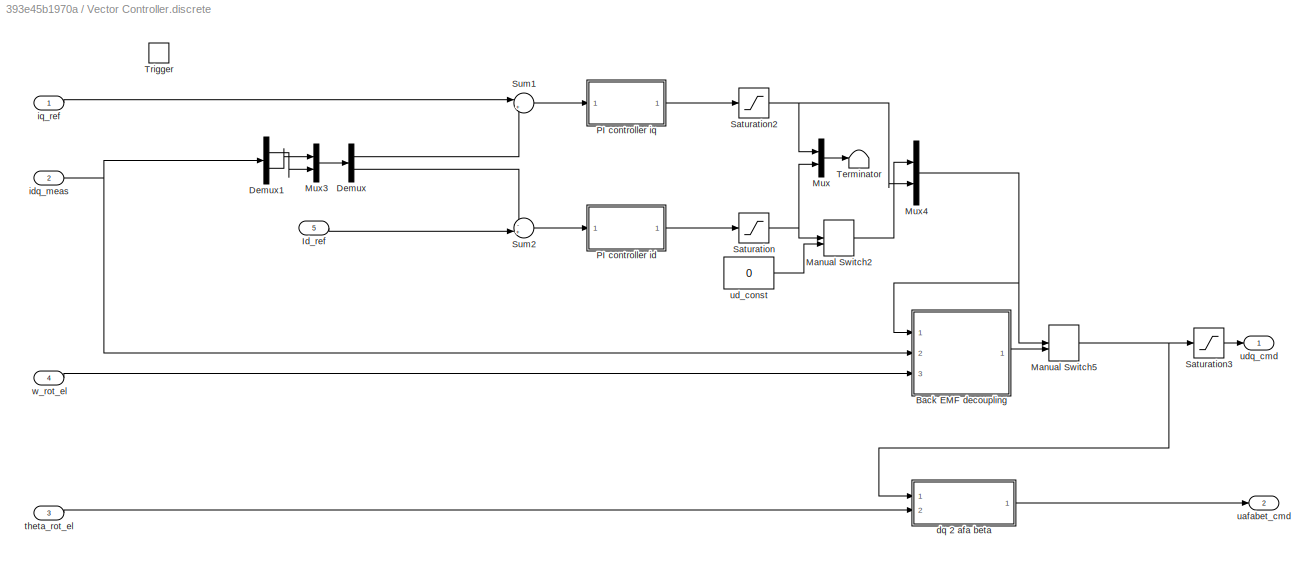
BLOCK [SubSystem] Vector Controller.discrete
  Ports = [5, 2, 0, 1]
  RequestExecContextInheritance = off
BLOCK [SubSystem] Vector Controller.discrete/Back EMF decoupling
  Ports = [3, 1]
  RequestExecContextInheritance = off
BLOCK [Demux] Vector Controller.discrete/Back EMF decoupling/Demux1
  DisplayOption = bar
  Outputs = 2
  Ports = [1, 2]
BLOCK [Demux] Vector Controller.discrete/Back EMF decoupling/Demux2
  DisplayOption = bar
  Outputs = 2
  Ports = [1, 2]
BLOCK [Gain] Vector Controller.discrete/Back EMF decoupling/Gain
  Gain = Lq
  OutDataTypeStr = Inherit: Inherit via internal rule
  ParamDataTypeStr = Inherit: Inherit via internal rule
  SaturateOnIntegerOverflow = off
BLOCK [Gain] Vector Controller.discrete/Back EMF decoupling/Gain1
  Gain = Ld
  OutDataTypeStr = Inherit: Inherit via internal rule
  ParamDataTypeStr = Inherit: Inherit via internal rule
  SaturateOnIntegerOverflow = off
BLOCK [Constant] Vector Controller.discrete/Back EMF decoupling/Lndmpm
  Value = Lndmpm
BLOCK [Mux] Vector Controller.discrete/Back EMF decoupling/Mux2
  DisplayOption = bar
  Inputs = 2
  Ports = [2, 1]
BLOCK [Product] Vector Controller.discrete/Back EMF decoupling/Product
  InputSameDT = off
  OutDataTypeStr = Inherit: Inherit via internal rule
  Ports = [2, 1]
  SaturateOnIntegerOverflow = off
BLOCK [Product] Vector Controller.discrete/Back EMF decoupling/Product1
  InputSameDT = off
  OutDataTypeStr = Inherit: Inherit via internal rule
  Ports = [2, 1]
  SaturateOnIntegerOverflow = off
BLOCK [Product] Vector Controller.discrete/Back EMF decoupling/Product2
  InputSameDT = off
  OutDataTypeStr = Inherit: Inherit via internal rule
  Ports = [2, 1]
  SaturateOnIntegerOverflow = off
BLOCK [Sum] Vector Controller.discrete/Back EMF decoupling/Sum
  IconShape = round
  InputSameDT = off
  Inputs = |+-
  OutDataTypeStr = Inherit: Inherit via internal rule
  Ports = [2, 1]
  SaturateOnIntegerOverflow = off
BLOCK [Sum] Vector Controller.discrete/Back EMF decoupling/Sum1
  IconShape = round
  InputSameDT = off
  Inputs = |++
  OutDataTypeStr = Inherit: Inherit via internal rule
  Ports = [2, 1]
  SaturateOnIntegerOverflow = off
BLOCK [Sum] Vector Controller.discrete/Back EMF decoupling/Sum2
  IconShape = round
  InputSameDT = off
  Inputs = |++
  OutDataTypeStr = Inherit: Inherit via internal rule
  Ports = [2, 1]
  SaturateOnIntegerOverflow = off
BLOCK [Inport] Vector Controller.discrete/Back EMF decoupling/idq_meas
  IconDisplay = Port number
  Port = 2
BLOCK [Outport] Vector Controller.discrete/Back EMF decoupling/udq_cmd
  IconDisplay = Port number
BLOCK [Inport] Vector Controller.discrete/Back EMF decoupling/vdq,PI
  IconDisplay = Port number
BLOCK [Inport] Vector Controller.discrete/Back EMF decoupling/wr
  IconDisplay = Port number
  Port = 3
BLOCK [Demux] Vector Controller.discrete/Demux
  DisplayOption = bar
  Outputs = 2
  Ports = [1, 2]
BLOCK [Demux] Vector Controller.discrete/Demux1
  DisplayOption = bar
  Outputs = 2
  Ports = [1, 2]
BLOCK [Inport] Vector Controller.discrete/Id_ref
  IconDisplay = Port number
  Port = 5
BLOCK [ManualSwitch] Vector Controller.discrete/Manual Switch2
BLOCK [ManualSwitch] Vector Controller.discrete/Manual Switch5
  CurrentSetting = 0
BLOCK [Mux] Vector Controller.discrete/Mux
  DisplayOption = bar
  Inputs = 2
  Ports = [2, 1]
BLOCK [Mux] Vector Controller.discrete/Mux3
  DisplayOption = bar
  Inputs = 2
  Ports = [2, 1]
BLOCK [Mux] Vector Controller.discrete/Mux4
  DisplayOption = bar
  Inputs = 2
  Ports = [2, 1]
BLOCK [SubSystem] Vector Controller.discrete/PI controller id
  Ports = [1, 1]
  RequestExecContextInheritance = off
BLOCK [DiscreteIntegrator] Vector Controller.discrete/PI controller id/Discrete-Time Integrator
  ICPrevOutput = DiscIntNeverNeededParam
  ICPrevScaledInput = DiscIntNeverNeededParam
  Ports = [1, 1]
  SampleTime = -1
BLOCK [Gain] Vector Controller.discrete/PI controller id/Kp
  Gain = Kp_id
  OutDataTypeStr = Inherit: Inherit via internal rule
  ParamDataTypeStr = Inherit: Inherit via internal rule
  SaturateOnIntegerOverflow = off
BLOCK [Sum] Vector Controller.discrete/PI controller id/Sum1
  IconShape = round
  InputSameDT = off
  Inputs = |++
  OutDataTypeStr = Inherit: Inherit via internal rule
  Ports = [2, 1]
  SaturateOnIntegerOverflow = off
BLOCK [Inport] Vector Controller.discrete/PI controller id/id_err
  IconDisplay = Port number
BLOCK [Gain] Vector Controller.discrete/PI controller id/ki
  Gain = Ki_id
  OutDataTypeStr = Inherit: Inherit via internal rule
  ParamDataTypeStr = Inherit: Inherit via internal rule
  SaturateOnIntegerOverflow = off
BLOCK [Outport] Vector Controller.discrete/PI controller id/vd
  IconDisplay = Port number
BLOCK [SubSystem] Vector Controller.discrete/PI controller iq
  Ports = [1, 1]
  RequestExecContextInheritance = off
BLOCK [DiscreteIntegrator] Vector Controller.discrete/PI controller iq/Discrete-Time Integrator
  ICPrevOutput = DiscIntNeverNeededParam
  ICPrevScaledInput = DiscIntNeverNeededParam
  Ports = [1, 1]
  SampleTime = -1
BLOCK [Gain] Vector Controller.discrete/PI controller iq/Kp
  Gain = Kp_iq
  OutDataTypeStr = Inherit: Inherit via internal rule
  ParamDataTypeStr = Inherit: Inherit via internal rule
  SaturateOnIntegerOverflow = off
BLOCK [Sum] Vector Controller.discrete/PI controller iq/Sum1
  IconShape = round
  InputSameDT = off
  Inputs = |++
  OutDataTypeStr = Inherit: Inherit via internal rule
  Ports = [2, 1]
  SaturateOnIntegerOverflow = off
BLOCK [Inport] Vector Controller.discrete/PI controller iq/iq_err
  IconDisplay = Port number
BLOCK [Gain] Vector Controller.discrete/PI controller iq/ki
  Gain = Ki_iq
  OutDataTypeStr = Inherit: Inherit via internal rule
  ParamDataTypeStr = Inherit: Inherit via internal rule
  SaturateOnIntegerOverflow = off
BLOCK [Outport] Vector Controller.discrete/PI controller iq/vq
  IconDisplay = Port number
BLOCK [Saturate] Vector Controller.discrete/Saturation
  InputPortMap = u0
  LowerLimit = -Vph
  Ports = [1, 1]
  UpperLimit = Vph
BLOCK [Saturate] Vector Controller.discrete/Saturation2
  InputPortMap = u0
  LowerLimit = -Vph
  Ports = [1, 1]
  UpperLimit = Vph
BLOCK [Saturate] Vector Controller.discrete/Saturation3
  InputPortMap = u0
  LowerLimit = -Vph
  Ports = [1, 1]
  UpperLimit = Vph
BLOCK [Sum] Vector Controller.discrete/Sum1
  IconShape = round
  InputSameDT = off
  Inputs = |+-
  OutDataTypeStr = Inherit: Inherit via internal rule
  Ports = [2, 1]
  SaturateOnIntegerOverflow = off
BLOCK [Sum] Vector Controller.discrete/Sum2
  IconShape = round
  InputSameDT = off
  Inputs = -+|
  OutDataTypeStr = Inherit: Inherit via internal rule
  Ports = [2, 1]
  SaturateOnIntegerOverflow = off
BLOCK [Terminator] Vector Controller.discrete/Terminator
BLOCK [TriggerPort] Vector Controller.discrete/Trigger
  Ports = []
  StatesWhenEnabling = held
  VariantControl = (inherit)
BLOCK [SubSystem] Vector Controller.discrete/dq 2 afa beta
  Ports = [2, 1]
  RequestExecContextInheritance = off
BLOCK [Mux] Vector Controller.discrete/dq 2 afa beta/Mux1
  DisplayOption = bar
  Inputs = 2
  Ports = [2, 1]
BLOCK [Mux] Vector Controller.discrete/dq 2 afa beta/Mux2
  DisplayOption = bar
  Inputs = 2
  Ports = [2, 1]
BLOCK [Outport] Vector Controller.discrete/dq 2 afa beta/afa beta
  IconDisplay = Port number
BLOCK [Inport] Vector Controller.discrete/dq 2 afa beta/dq
  IconDisplay = Port number
BLOCK [Fcn] Vector Controller.discrete/dq 2 afa beta/dq2afa
  Expr = u(1)*cos(u(3))-u(2)*sin(u(3))
BLOCK [Fcn] Vector Controller.discrete/dq 2 afa beta/dq2beta
  Expr = u(1)*sin(u(3))+u(2)*cos(u(3))
BLOCK [Inport] Vector Controller.discrete/dq 2 afa beta/theta
  IconDisplay = Port number
  Port = 2
BLOCK [Inport] Vector Controller.discrete/idq_meas
  IconDisplay = Port number
  Port = 2
BLOCK [Inport] Vector Controller.discrete/iq_ref
  IconDisplay = Port number
BLOCK [Inport] Vector Controller.discrete/theta_rot_el
  IconDisplay = Port number
  Port = 3
BLOCK [Outport] Vector Controller.discrete/uafabet_cmd
  IconDisplay = Port number
  Port = 2
BLOCK [Constant] Vector Controller.discrete/ud_const
  Value = 0
BLOCK [Outport] Vector Controller.discrete/udq_cmd
  IconDisplay = Port number
BLOCK [Inport] Vector Controller.discrete/w_rot_el
  IconDisplay = Port number
  Port = 4
BLOCK [SubSystem] afabet 2 abc
  Ports = [1, 1]
  RequestExecContextInheritance = off
BLOCK [Constant] afabet 2 abc/Constant
  Value = 0
BLOCK [Mux] afabet 2 abc/Mux1
  DisplayOption = bar
  Inputs = 2
  Ports = [2, 1]
BLOCK [Mux] afabet 2 abc/Mux2
  DisplayOption = bar
  Inputs = 3
  Ports = [3, 1]
BLOCK [Outport] afabet 2 abc/abc
  IconDisplay = Port number
BLOCK [Inport] afabet 2 abc/afabet
  IconDisplay = Port number
BLOCK [Fcn] afabet 2 abc/qd2a
  Expr = u(1)+u(3)
BLOCK [Fcn] afabet 2 abc/qd2b
  Expr = u(1)*cos(2/3*pi)+u(2)*sin(2/3*pi)+u(3)
BLOCK [Fcn] afabet 2 abc/qd2c
  Expr = u(1)*cos(2/3*pi)-u(2)*sin(2/3*pi)+u(3)
BLOCK [SubSystem] cont_Kalman_Bucy_filter
  Ports = [2, 2]
  RequestExecContextInheritance = off
BLOCK [Demux] cont_Kalman_Bucy_filter/Demux
  DisplayOption = bar
  Outputs = 2
  Ports = [1, 2]
BLOCK [From] cont_Kalman_Bucy_filter/From
  GotoTag = T_mot_meas_local
BLOCK [From] cont_Kalman_Bucy_filter/From1
  GotoTag = n_rot_mec
BLOCK [Goto] cont_Kalman_Bucy_filter/Goto
  GotoTag = n_rot_mec
BLOCK [Goto] cont_Kalman_Bucy_filter/Goto1
  GotoTag = T_mot_meas_local
BLOCK [Integrator] cont_Kalman_Bucy_filter/Integrator
  Ports = [1, 1]
BLOCK [Integrator] cont_Kalman_Bucy_filter/Integrator1
  Ports = [1, 1]
BLOCK [Inport] cont_Kalman_Bucy_filter/T_mot_in
  IconDisplay = Port number
  Port = 2
BLOCK [Terminator] cont_Kalman_Bucy_filter/Terminator
BLOCK [SubSystem] cont_Kalman_Bucy_filter/cont_KF_algorithm
  ErrorFcn = Stateflow.Translate.translate
  PermitHierarchicalResolution = ExplicitOnly
  Ports = [4, 4]
  RequestExecContextInheritance = off
  SFBlockType = MATLAB Function
  TreatAsAtomicUnit = on
BLOCK [Demux] cont_Kalman_Bucy_filter/cont_KF_algorithm/ Demux 
  Outputs = 1
  Ports = [1, 1]
BLOCK [S-Function] cont_Kalman_Bucy_filter/cont_KF_algorithm/ SFunction 
  EnableBusSupport = on
  FunctionName = sf_sfun
  PortCounts = [4 5]
  Ports = [4, 5]
  SFcnIsStateOwnerBlock = off
  SFunctionDeploymentMode = off
  Tag = Stateflow S-Function FOC_w_LTID_linear_v3 8
BLOCK [Terminator] cont_Kalman_Bucy_filter/cont_KF_algorithm/ Terminator 
BLOCK [Inport] cont_Kalman_Bucy_filter/cont_KF_algorithm/P_in
  IconDisplay = Port number
  Port = 4
BLOCK [Outport] cont_Kalman_Bucy_filter/cont_KF_algorithm/d_P_out
  IconDisplay = Port number
  Port = 4
BLOCK [Inport] cont_Kalman_Bucy_filter/cont_KF_algorithm/meas
  IconDisplay = Port number
  Port = 2
BLOCK [Inport] cont_Kalman_Bucy_filter/cont_KF_algorithm/states_in
  IconDisplay = Port number
  Port = 3
BLOCK [Outport] cont_Kalman_Bucy_filter/cont_KF_algorithm/states_out
  IconDisplay = Port number
  Port = 3
BLOCK [Inport] cont_Kalman_Bucy_filter/cont_KF_algorithm/u
  IconDisplay = Port number
BLOCK [Outport] cont_Kalman_Bucy_filter/cont_KF_algorithm/xhat
  IconDisplay = Port number
BLOCK [Outport] cont_Kalman_Bucy_filter/cont_KF_algorithm/yhat
  IconDisplay = Port number
  Port = 2
BLOCK [Outport] cont_Kalman_Bucy_filter/est_load
  IconDisplay = Port number
BLOCK [Inport] cont_Kalman_Bucy_filter/n_rot_mec
  IconDisplay = Port number
BLOCK [Outport] cont_Kalman_Bucy_filter/n_rot_mec_out_
  IconDisplay = Port number
  Port = 2
BLOCK [Gain] el2mec
  Gain = 1/Npp
  OutDataTypeStr = Inherit: Inherit via internal rule
  ParamDataTypeStr = Inherit: Inherit via internal rule
  SaturateOnIntegerOverflow = off
BLOCK [Constant] ff_torque_switch
  Value = 3
BLOCK [SubSystem] from300-1300 
  ClipboardFcn = sigbuilder_block('clipboard');
  CloseFcn = sigbuilder_block('close');
  ContinueFcn = sigbuilder_block('continue')
  CopyFcn = sigbuilder_block('copy');
  DeleteFcn = sigbuilder_block('delete');
  LoadFcn = sigbuilder_block('load');
  MaskHideContents = on
  ModelCloseFcn = sigbuilder_block('modelClose');
  NameChangeFcn = sigbuilder_block('namechange');
  OpenFcn = sigbuilder_block('open',[6 30 1428 681.75 ]);
  PauseFcn = sigbuilder_block('pause')
  Ports = [0, 1]
  PreSaveFcn = sigbuilder_block('preSave');
  RequestExecContextInheritance = off
  StartFcn = sigbuilder_block('start');
  StopFcn = sigbuilder_block('stop');
  Tag = STV Subsys
BLOCK [Demux] from300-1300 /Demux
  Outputs = 1
  Ports = [1, 1]
  Tag = STV Demux
BLOCK [FromWorkspace] from300-1300 /FromWs
  SampleTime = 0
  Tag = STV FromWs
  VariableName = tuvar
  ZeroCross = on
BLOCK [Outport] from300-1300 /n
  IconDisplay = Port number
  Tag = STV Outport
BLOCK [From] iqd_meas.1
  CloseFcn = tagdialog Close
  GotoTag = Omega_rot_el
BLOCK [From] iqd_meas.10
  CloseFcn = tagdialog Close
  GotoTag = n_rot_mec
BLOCK [Goto] iqd_meas.11
  GotoTag = vabc_cmd
BLOCK [From] iqd_meas.12
  CloseFcn = tagdialog Close
  GotoTag = vabc_cmd
BLOCK [Goto] iqd_meas.13
  GotoTag = Tload_cmd
BLOCK [From] iqd_meas.14
  CloseFcn = tagdialog Close
  GotoTag = Tload_cmd
BLOCK [Goto] iqd_meas.15
  GotoTag = Te_meas
BLOCK [Goto] iqd_meas.16
  GotoTag = iabc_meas
  TagVisibility = global
BLOCK [Goto] iqd_meas.17
  GotoTag = vafabet_cmd
BLOCK [From] iqd_meas.18
  CloseFcn = tagdialog Close
  GotoTag = vafabet_cmd
BLOCK [From] iqd_meas.19
  CloseFcn = tagdialog Close
  GotoTag = n_rot_mec
BLOCK [From] iqd_meas.2
  CloseFcn = tagdialog Close
  GotoTag = idq_meas
  TagVisibility = global
BLOCK [Goto] iqd_meas.20
  GotoTag = Flkg_abc
BLOCK [Goto] iqd_meas.22
  GotoTag = e_afabet
BLOCK [From] iqd_meas.24
  CloseFcn = tagdialog Close
  GotoTag = n_rot_mec
BLOCK [Goto] iqd_meas.25
  GotoTag = the_rot_el_cont
BLOCK [Goto] iqd_meas.27
  GotoTag = Flkg_afabet
BLOCK [From] iqd_meas.3
  CloseFcn = tagdialog Close
  GotoTag = theta_rot_el_meas
  TagVisibility = global
BLOCK [Goto] iqd_meas.4
  GotoTag = vdq_cmd
BLOCK [Goto] iqd_meas.5
  GotoTag = didiq_dt
BLOCK [From] iqd_meas.6
  CloseFcn = tagdialog Close
  GotoTag = n_rot_mec
BLOCK [Goto] iqd_meas.7
  GotoTag = Iq_command
BLOCK [Goto] iqd_meas.8
  GotoTag = Omega_rot_el
BLOCK [From] iqd_meas.9
  CloseFcn = tagdialog Close
  GotoTag = Iq_command
BLOCK [Gain] rad2rpm
  Gain = 30/pi
  OutDataTypeStr = Inherit: Inherit via internal rule
  ParamDataTypeStr = Inherit: Inherit via internal rule
  SaturateOnIntegerOverflow = off
BLOCK [Gain] rad2rpm1
  Gain = 30/pi
  OutDataTypeStr = Inherit: Inherit via internal rule
  ParamDataTypeStr = Inherit: Inherit via internal rule
  SaturateOnIntegerOverflow = off
BLOCK [Goto] theta_rot_el.1
  GotoTag = theta_rot_el_meas
  TagVisibility = global
BLOCK [Goto] theta_rot_el.2
  GotoTag = n_rot_el
BLOCK [Goto] theta_rot_el.3
  GotoTag = theta_rot_el
  TagVisibility = global
BLOCK [Goto] theta_rot_el.4
  GotoTag = n_rot_mec
BLOCK [SubSystem] tload_standard
  Ports = [0, 1]
  RequestExecContextInheritance = off
BLOCK [Sum] tload_standard/Add
  InputSameDT = off
  Inputs = +++++
  OutDataTypeStr = Inherit: Inherit via internal rule
  Ports = [5, 1]
  SaturateOnIntegerOverflow = off
BLOCK [Step] tload_standard/Step Load torque 1
  After = Tload
  SampleTime = 0
  Time = 3
BLOCK [Step] tload_standard/Step Load torque1
  After = Tload
  SampleTime = 0
  Time = 9
BLOCK [Step] tload_standard/Step Load torque2
  After = -Tload
  SampleTime = 0
  Time = 7
BLOCK [Step] tload_standard/Step Load torque3
  After = -Tload
  SampleTime = 0
  Time = 13
BLOCK [Outport] tload_standard/T_load
  IconDisplay = Port number
BLOCK [Constant] tload_standard/Tload_ini
  Value = 0
ANNOTATION (root): Comparisons
ANNOTATION (root): Kalman filter load estimator - colored noise
ANNOTATION (root): Kalman filter load estimator v2
ANNOTATION (root): Load application
ANNOTATION (root): Luenberger load estimator v2
ANNOTATION (root): Motor model + FOC controller
ANNOTATION (root): Speed ctrl loop
ANNOTATION (root): Speed reference generation
ANNOTATION (root): Time-varying discrete Kalman filter
ANNOTATION (root): continuous Kalman-Bucy filter
ANNOTATION KF_load_est2: Inputs
ANNOTATION KF_load_est2: Luenberger estimator
ANNOTATION KF_load_est2: Outputs
ANNOTATION KF_load_est_col: Inputs
ANNOTATION KF_load_est_col: Luenberger estimator
ANNOTATION KF_load_est_col: Outputs
ANNOTATION Luenberger_load_est: Inputs
ANNOTATION Luenberger_load_est: Luenberger estimator
ANNOTATION Luenberger_load_est: Outputs
ANNOTATION PMSM motor: Lnd_d
ANNOTATION PMSM motor: Lnd_q
ANNOTATION PMSM motor: el. rotor speed
LINE Bias:1 -> Gain1:1
LINE Const. iq_ref:1 -> Manual Switch1:2
LINE Constant1:1 -> Vector Controller.discrete:5
LINE Constant2:1 -> Multiport Switch:3
LINE Constant3:1 -> Multiport Switch1:5
LINE Constant4:1 -> Multiport Switch4:1
LINE Constant:1 -> Multiport Switch4:2
LINE Current 3//2 transformation/Demux:1 -> Current 3//2 transformation/Goto8:1
LINE Current 3//2 transformation/Demux:2 -> Current 3//2 transformation/Goto9:1
LINE Current 3//2 transformation/Detect peak/Clock:1 -> Current 3//2 transformation/Detect peak/Compare To Constant:1
LINE Current 3//2 transformation/Detect peak/Compare To Constant:1 -> Current 3//2 transformation/Detect peak/Product:1
LINE Current 3//2 transformation/Detect peak/Demux1:1 -> Current 3//2 transformation/Detect peak/Product:2
LINE Current 3//2 transformation/Detect peak/Demux1:2 -> Current 3//2 transformation/Detect peak/Terminator1:1
LINE Current 3//2 transformation/Detect peak/Demux1:3 -> Current 3//2 transformation/Detect peak/Terminator:1
NET Current 3//2 transformation/Detect peak/MinMax:1 -> Current 3//2 transformation/Detect peak/Peak:1, Current 3//2 transformation/Detect peak/Unit Delay:1
LINE Current 3//2 transformation/Detect peak/Product:1 -> Current 3//2 transformation/Detect peak/MinMax:1
LINE Current 3//2 transformation/Detect peak/Unit Delay:1 -> Current 3//2 transformation/Detect peak/MinMax:2
LINE Current 3//2 transformation/Detect peak/iabc:1 -> Current 3//2 transformation/Detect peak/Demux1:1
LINE Current 3//2 transformation/Detect peak:1 -> Current 3//2 transformation/Display:1
LINE Current 3//2 transformation/From14:1 -> Current 3//2 transformation/current to torque:1
LINE Current 3//2 transformation/From19:1 -> Current 3//2 transformation/Terminator1:1
LINE Current 3//2 transformation/From:1 -> Current 3//2 transformation/Terminator:1
NET Current 3//2 transformation/Manual Switch7:1 -> Current 3//2 transformation/Detect peak:1, Current 3//2 transformation/abc 2 dq:1
LINE Current 3//2 transformation/Noise2/Constant3:1 -> Current 3//2 transformation/Noise2/Product2:2
LINE Current 3//2 transformation/Noise2/In1:1 -> Current 3//2 transformation/Noise2/Sum:1
LINE Current 3//2 transformation/Noise2/Product2:1 -> Current 3//2 transformation/Noise2/Sum:2
LINE Current 3//2 transformation/Noise2/Random Number:1 -> Current 3//2 transformation/Noise2/Product2:1
LINE Current 3//2 transformation/Noise2/Sum:1 -> Current 3//2 transformation/Noise2/Out1:1
LINE Current 3//2 transformation/Noise2:1 -> Current 3//2 transformation/iqd_meas.1:1
NET Current 3//2 transformation/abc 2 dq/Mux1:1 -> Current 3//2 transformation/abc 2 dq/abc2d:1, Current 3//2 transformation/abc 2 dq/abc2q:1
LINE Current 3//2 transformation/abc 2 dq/Mux2:1 -> Current 3//2 transformation/abc 2 dq/dq:1
LINE Current 3//2 transformation/abc 2 dq/abc2d:1 -> Current 3//2 transformation/abc 2 dq/Mux2:1
LINE Current 3//2 transformation/abc 2 dq/abc2q:1 -> Current 3//2 transformation/abc 2 dq/Mux2:2
LINE Current 3//2 transformation/abc 2 dq/abc:1 -> Current 3//2 transformation/abc 2 dq/Mux1:1
LINE Current 3//2 transformation/abc 2 dq/theta:1 -> Current 3//2 transformation/abc 2 dq/Mux1:2
NET Current 3//2 transformation/abc 2 dq:1 -> Current 3//2 transformation/Noise2:1, Current 3//2 transformation/dq 2 afa beta:1
LINE Current 3//2 transformation/current to torque:1 -> Current 3//2 transformation/Goto10:1
NET Current 3//2 transformation/dq 2 afa beta/Mux1:1 -> Current 3//2 transformation/dq 2 afa beta/dq2afa:1, Current 3//2 transformation/dq 2 afa beta/dq2beta:1
LINE Current 3//2 transformation/dq 2 afa beta/Mux2:1 -> Current 3//2 transformation/dq 2 afa beta/afa beta:1
LINE Current 3//2 transformation/dq 2 afa beta/dq2afa:1 -> Current 3//2 transformation/dq 2 afa beta/Mux2:1
LINE Current 3//2 transformation/dq 2 afa beta/dq2beta:1 -> Current 3//2 transformation/dq 2 afa beta/Mux2:2
LINE Current 3//2 transformation/dq 2 afa beta/dq:1 -> Current 3//2 transformation/dq 2 afa beta/Mux1:1
LINE Current 3//2 transformation/dq 2 afa beta/theta:1 -> Current 3//2 transformation/dq 2 afa beta/Mux1:2
LINE Current 3//2 transformation/dq 2 afa beta:1 -> Current 3//2 transformation/iqd_meas.7:1
NET Current 3//2 transformation/iqd_meas.20:1 -> Current 3//2 transformation/abc 2 dq:2, Current 3//2 transformation/dq 2 afa beta:2
NET Current 3//2 transformation/iqd_meas.21:1 -> Current 3//2 transformation/Manual Switch7:1, Current 3//2 transformation/Manual Switch7:2
LINE Current 3//2 transformation/iqd_meas.2:1 -> Current 3//2 transformation/Demux:1
LINE Demux1:1 -> Mux3:1
LINE Demux1:2 -> Mux3:2
LINE From10:1 -> Mux1:3
LINE From11:1 -> Mux1:2
LINE From12:1 -> Multiport Switch1:2
LINE From13:1 -> Multiport Switch1:3
LINE From14:1 -> Npp4:1
LINE From15:1 -> Npp6:1
LINE From16:1 -> cont_Kalman_Bucy_filter:2
LINE From17:1 -> Mux1:4
LINE From1:1 -> Mux:2
LINE From20:1 -> Luenberger_load_est:2
LINE From22:1 -> KF_load_est2:2
LINE From23:1 -> Npp5:1
LINE From24:1 -> Time-varying_KF:2
LINE From25:1 -> Multiport Switch1:4
LINE From26:1 -> Npp7:1
LINE From27:1 -> Time-varying_correlated_KF:2
LINE From28:1 -> Mux5:2
LINE From29:1 -> Mux5:1
LINE From2:1 -> Terminator:1
LINE From30:1 -> Npp8:1
LINE From31:1 -> KF_load_est_col:2
LINE From32:1 -> Mux6:2
LINE From33:1 -> Mux6:1
LINE From34:1 -> Npp9:1
LINE From35:1 -> Time-varying_colored_KF:2
LINE From36:1 -> Mux6:3
LINE From3:1 -> Subsystem:1
LINE From4:1 -> Subsystem:2
LINE From5:1 -> rad2rpm1:1
LINE From6:1 -> Mux4:1
LINE From7:1 -> Mux4:2
LINE From9:1 -> Npp2:1
LINE From:1 -> Sum:1
LINE Gain1:1 -> Multiport Switch4:4
LINE Gain2:1 -> Sum1:2
LINE Gain4:1 -> Sum2:2
LINE Gain5:1 -> Multiport Switch4:3
NET KF_load_est2/Demux2:1 -> KF_load_est2/Discrete-Time Integrator1:1, KF_load_est2/MotAsp_est:1
LINE KF_load_est2/Demux2:2 -> KF_load_est2/est_load:1
LINE KF_load_est2/Discrete-Time Integrator1:1 -> KF_load_est2/Npp1:1
LINE KF_load_est2/From1:1 -> KF_load_est2/Demux2:1
LINE KF_load_est2/From21:1 -> KF_load_est2/Mux:1
NET KF_load_est2/Mux:1 -> KF_load_est2/d_B_KF:1, KF_load_est2/d_D_KF:1
LINE KF_load_est2/Npp1:1 -> KF_load_est2/angle to wrapped angle:1
LINE KF_load_est2/Sum7:1 -> KF_load_est2/Goto7:1
LINE KF_load_est2/Sum9:1 -> KF_load_est2/Unit Delay:1
LINE KF_load_est2/T_mot_in:1 -> KF_load_est2/Goto1:1
NET KF_load_est2/Unit Delay:1 -> KF_load_est2/d_A_KF:1, KF_load_est2/d_C_KF:1
LINE KF_load_est2/angle to wrapped angle/Atan2:1 -> KF_load_est2/angle to wrapped angle/Bias3:1
LINE KF_load_est2/angle to wrapped angle/Bias1:1 -> KF_load_est2/angle to wrapped angle/Sin:1
LINE KF_load_est2/angle to wrapped angle/Bias2:1 -> KF_load_est2/angle to wrapped angle/Cos:1
LINE KF_load_est2/angle to wrapped angle/Bias3:1 -> KF_load_est2/angle to wrapped angle/Out_:1
LINE KF_load_est2/angle to wrapped angle/Cos:1 -> KF_load_est2/angle to wrapped angle/Atan2:2
NET KF_load_est2/angle to wrapped angle/In_:1 -> KF_load_est2/angle to wrapped angle/Bias1:1, KF_load_est2/angle to wrapped angle/Bias2:1
LINE KF_load_est2/angle to wrapped angle/Sin:1 -> KF_load_est2/angle to wrapped angle/Atan2:1
LINE KF_load_est2/angle to wrapped angle:1 -> KF_load_est2/MotAng_est:1
LINE KF_load_est2/d_A_KF:1 -> KF_load_est2/Sum9:2
LINE KF_load_est2/d_B_KF:1 -> KF_load_est2/Sum9:1
LINE KF_load_est2/d_C_KF:1 -> KF_load_est2/Sum7:2
LINE KF_load_est2/d_D_KF:1 -> KF_load_est2/Sum7:1
LINE KF_load_est2/iqd_meas.30:1 -> KF_load_est2/Mux:2
LINE KF_load_est2/n_rot_mec:1 -> KF_load_est2/Goto:1
NET KF_load_est2:1 -> Goto6:1, Scope9:1
LINE KF_load_est2:2 -> Goto3:1
LINE KF_load_est2:3 -> Goto4:1
NET KF_load_est_col/Demux2:1 -> KF_load_est_col/Discrete-Time Integrator1:1, KF_load_est_col/MotAsp_est:1
LINE KF_load_est_col/Demux2:2 -> KF_load_est_col/est_load:1
LINE KF_load_est_col/Demux2:3 -> KF_load_est_col/Terminator1:1
LINE KF_load_est_col/Discrete-Time Integrator1:1 -> KF_load_est_col/Npp1:1
LINE KF_load_est_col/From1:1 -> KF_load_est_col/Demux2:1
LINE KF_load_est_col/From21:1 -> KF_load_est_col/Mux:1
NET KF_load_est_col/Mux:1 -> KF_load_est_col/d_B_KF_col:1, KF_load_est_col/d_D_KF_col:1
LINE KF_load_est_col/Npp1:1 -> KF_load_est_col/angle to wrapped angle:1
LINE KF_load_est_col/Sum7:1 -> KF_load_est_col/Goto7:1
LINE KF_load_est_col/Sum9:1 -> KF_load_est_col/Unit Delay:1
LINE KF_load_est_col/T_mot_in:1 -> KF_load_est_col/Goto1:1
NET KF_load_est_col/Unit Delay:1 -> KF_load_est_col/d_A_KF_col:1, KF_load_est_col/d_C_KF_col:1
LINE KF_load_est_col/angle to wrapped angle/Atan2:1 -> KF_load_est_col/angle to wrapped angle/Bias3:1
LINE KF_load_est_col/angle to wrapped angle/Bias1:1 -> KF_load_est_col/angle to wrapped angle/Sin:1
LINE KF_load_est_col/angle to wrapped angle/Bias2:1 -> KF_load_est_col/angle to wrapped angle/Cos:1
LINE KF_load_est_col/angle to wrapped angle/Bias3:1 -> KF_load_est_col/angle to wrapped angle/Out_:1
LINE KF_load_est_col/angle to wrapped angle/Cos:1 -> KF_load_est_col/angle to wrapped angle/Atan2:2
NET KF_load_est_col/angle to wrapped angle/In_:1 -> KF_load_est_col/angle to wrapped angle/Bias1:1, KF_load_est_col/angle to wrapped angle/Bias2:1
LINE KF_load_est_col/angle to wrapped angle/Sin:1 -> KF_load_est_col/angle to wrapped angle/Atan2:1
LINE KF_load_est_col/angle to wrapped angle:1 -> KF_load_est_col/MotAng_est:1
LINE KF_load_est_col/d_A_KF_col:1 -> KF_load_est_col/Sum9:2
LINE KF_load_est_col/d_B_KF_col:1 -> KF_load_est_col/Sum9:1
LINE KF_load_est_col/d_C_KF_col:1 -> KF_load_est_col/Sum7:2
LINE KF_load_est_col/d_D_KF_col:1 -> KF_load_est_col/Sum7:1
LINE KF_load_est_col/iqd_meas.30:1 -> KF_load_est_col/Mux:2
LINE KF_load_est_col/n_rot_mec:1 -> KF_load_est_col/Goto:1
NET KF_load_est_col:1 -> Goto13:1, Scope12:1
LINE KF_load_est_col:2 -> Terminator10:1
LINE KF_load_est_col:3 -> Terminator11:1
LINE KT2C:1 -> Gain4:1
LINE Load Selection:1 -> Multiport Switch:1
LINE Load torque/Add:1 -> Load torque/T_load:1
LINE Load torque/Step Load torque 1:1 -> Load torque/Add:2
LINE Load torque/Step Load torque2:1 -> Load torque/Add:3
LINE Load torque/Tload:1 -> Load torque/Add:1
NET Load torque:1 -> Gain2:1, Multiport Switch:4
LINE Luenberger_est_load:1 -> Mux1:1
NET Luenberger_load_est/Demux2:1 -> Luenberger_load_est/Discrete-Time Integrator1:1, Luenberger_load_est/MotAsp_est:1
LINE Luenberger_load_est/Demux2:2 -> Luenberger_load_est/est_load:1
LINE Luenberger_load_est/Discrete-Time Integrator1:1 -> Luenberger_load_est/Npp1:1
LINE Luenberger_load_est/From1:1 -> Luenberger_load_est/Demux2:1
LINE Luenberger_load_est/From21:1 -> Luenberger_load_est/Mux:1
NET Luenberger_load_est/Mux:1 -> Luenberger_load_est/d_B_e:1, Luenberger_load_est/d_D_e:1
LINE Luenberger_load_est/Npp1:1 -> Luenberger_load_est/angle to wrapped angle:1
LINE Luenberger_load_est/Sum7:1 -> Luenberger_load_est/Goto7:1
LINE Luenberger_load_est/Sum9:1 -> Luenberger_load_est/Unit Delay:1
LINE Luenberger_load_est/T_mot_in:1 -> Luenberger_load_est/Goto1:1
NET Luenberger_load_est/Unit Delay:1 -> Luenberger_load_est/d_A_e:1, Luenberger_load_est/d_C_e:1
LINE Luenberger_load_est/angle to wrapped angle/Atan2:1 -> Luenberger_load_est/angle to wrapped angle/Bias3:1
LINE Luenberger_load_est/angle to wrapped angle/Bias1:1 -> Luenberger_load_est/angle to wrapped angle/Sin:1
LINE Luenberger_load_est/angle to wrapped angle/Bias2:1 -> Luenberger_load_est/angle to wrapped angle/Cos:1
LINE Luenberger_load_est/angle to wrapped angle/Bias3:1 -> Luenberger_load_est/angle to wrapped angle/Out_:1
LINE Luenberger_load_est/angle to wrapped angle/Cos:1 -> Luenberger_load_est/angle to wrapped angle/Atan2:2
NET Luenberger_load_est/angle to wrapped angle/In_:1 -> Luenberger_load_est/angle to wrapped angle/Bias1:1, Luenberger_load_est/angle to wrapped angle/Bias2:1
LINE Luenberger_load_est/angle to wrapped angle/Sin:1 -> Luenberger_load_est/angle to wrapped angle/Atan2:1
LINE Luenberger_load_est/angle to wrapped angle:1 -> Luenberger_load_est/MotAng_est:1
LINE Luenberger_load_est/d_A_e:1 -> Luenberger_load_est/Sum9:2
LINE Luenberger_load_est/d_B_e:1 -> Luenberger_load_est/Sum9:1
LINE Luenberger_load_est/d_C_e:1 -> Luenberger_load_est/Sum7:2
LINE Luenberger_load_est/d_D_e:1 -> Luenberger_load_est/Sum7:1
LINE Luenberger_load_est/iqd_meas.30:1 -> Luenberger_load_est/Mux:2
LINE Luenberger_load_est/n_rot_mec:1 -> Luenberger_load_est/Goto:1
NET Luenberger_load_est:1 -> Goto12:1, Scope6:1
LINE Luenberger_load_est:2 -> Terminator1:1
LINE Luenberger_load_est:3 -> Terminator2:1
LINE Manual Switch1:1 -> Vector Controller.discrete:1
LINE Multiport Switch1:1 -> KT2C:1
NET Multiport Switch4:1 -> Goto:1, Scope14:1
NET Multiport Switch:1 -> Scope16:1, iqd_meas.13:1
NET Mux1:1 -> Goto2:1, Scope3:1
LINE Mux2:1 -> Scope2:1
LINE Mux3:1 -> afabet 2 abc:1
LINE Mux4:1 -> Scope4:1
LINE Mux5:1 -> Scope11:1
LINE Mux6:1 -> Scope13:1
NET Mux:1 -> Goto1:1, Scope:1
LINE Noise1/Constant3:1 -> Noise1/Product2:2
LINE Noise1/In1:1 -> Noise1/Sum:1
LINE Noise1/Product2:1 -> Noise1/Sum:2
LINE Noise1/Random Number:1 -> Noise1/Product2:1
LINE Noise1/Sum:1 -> Noise1/Out1:1
NET Noise1:1 -> iqd_meas.8:1, rad2rpm:1
LINE Npp2:1 -> Luenberger_load_est:1
LINE Npp4:1 -> KF_load_est2:1
LINE Npp5:1 -> Time-varying_KF:1
LINE Npp6:1 -> cont_Kalman_Bucy_filter:1
LINE Npp7:1 -> Time-varying_correlated_KF:1
LINE Npp8:1 -> KF_load_est_col:1
LINE Npp9:1 -> Time-varying_colored_KF:1
LINE PMSM motor/1//J1:1 -> PMSM motor/Int.3:1
NET PMSM motor/1//Ld.1:1 -> PMSM motor/Mux:1, PMSM motor/id.1:1
LINE PMSM motor/1//Ld.2:1 -> PMSM motor/Mux2:1
NET PMSM motor/1//Lq.1:1 -> PMSM motor/Mux:2, PMSM motor/iq.1:1
LINE PMSM motor/1//Lq.2:1 -> PMSM motor/Mux2:2
LINE PMSM motor/3//2Npp:1 -> PMSM motor/Te.2:1
LINE PMSM motor/Add:1 -> PMSM motor/3//2Npp:1
LINE PMSM motor/Clock:1 -> PMSM motor/qd2a:1
LINE PMSM motor/Const. Omeg:1 -> PMSM motor/Manual Switch:1
LINE PMSM motor/Constant2:1 -> PMSM motor/Relational Operator2:2
LINE PMSM motor/Constant:1 -> PMSM motor/Integrator:2
LINE PMSM motor/Demux:1 -> PMSM motor/vd:1
LINE PMSM motor/Demux:2 -> PMSM motor/vq:1
LINE PMSM motor/Friction/Constant14:1 -> PMSM motor/Friction/Divide:2
LINE PMSM motor/Friction/Constant15:1 -> PMSM motor/Friction/Multiply:2
LINE PMSM motor/Friction/Divide:1 -> PMSM motor/Friction/Tanh:1
LINE PMSM motor/Friction/Gain2:1 -> PMSM motor/Friction/Sum:1
LINE PMSM motor/Friction/Gain:1 -> PMSM motor/Friction/Sum:2
LINE PMSM motor/Friction/Multiply:1 -> PMSM motor/Friction/Gain:1
LINE PMSM motor/Friction/Sum:1 -> PMSM motor/Friction/Friction:1
LINE PMSM motor/Friction/Tanh:1 -> PMSM motor/Friction/Multiply:1
NET PMSM motor/Friction/wr,mec:1 -> PMSM motor/Friction/Divide:1, PMSM motor/Friction/Gain2:1
LINE PMSM motor/Friction:1 -> PMSM motor/Sum6:2
LINE PMSM motor/From2:1 -> PMSM motor/Trigonometric Function1:1
LINE PMSM motor/From4:1 -> PMSM motor/Trigonometric Function:1
LINE PMSM motor/From:1 -> PMSM motor/didiq_dt:1
LINE PMSM motor/Gain1:1 -> PMSM motor/Relational Operator2:1
LINE PMSM motor/Gain2:1 -> PMSM motor/Multiply:2
LINE PMSM motor/Gain3:1 -> PMSM motor/Multiply1:1
LINE PMSM motor/Ini. rotor pos. (rad):1 -> PMSM motor/Multiport Switch:2
NET PMSM motor/Int.1:1 -> PMSM motor/1//Lq.1:1, PMSM motor/Lndq:1, PMSM motor/Prod.2:2
NET PMSM motor/Int.2:1 -> PMSM motor/Lndd:1, PMSM motor/Prod.1:2, PMSM motor/Sum5:2
NET PMSM motor/Int.3:1 -> PMSM motor/Friction:1, PMSM motor/Npp1:1
NET PMSM motor/Integrator1:1 -> PMSM motor/Gain1:1, PMSM motor/abc 2 dq:2, PMSM motor/dq 2 afa beta:2, PMSM motor/dq0 2 abc1:2, PMSM motor/dq0 2 abc:2, PMSM motor/the_rot_el:1
NET PMSM motor/Integrator:1 -> PMSM motor/Goto1:1, PMSM motor/the_rot_el_cont:1
LINE PMSM motor/Lndd.1:1 -> PMSM motor/Product:2
LINE PMSM motor/Lndd.3:1 -> PMSM motor/Mux3:1
LINE PMSM motor/Lndq.1:1 -> PMSM motor/Product1:2
LINE PMSM motor/Lndq.2:1 -> PMSM motor/Mux3:2
NET PMSM motor/Manual Switch:1 -> PMSM motor/Integrator1:1, PMSM motor/Integrator:1, PMSM motor/Omega.1:1
LINE PMSM motor/Multiply1:1 -> PMSM motor/Mux5:2
LINE PMSM motor/Multiply:1 -> PMSM motor/Mux5:1
LINE PMSM motor/Multiport Switch:1 -> PMSM motor/Integrator1:3
LINE PMSM motor/Mux1:1 -> PMSM motor/dq0 2 abc:1
LINE PMSM motor/Mux2:1 -> PMSM motor/Goto:1
LINE PMSM motor/Mux3:1 -> PMSM motor/dq 2 afa beta:1
LINE PMSM motor/Mux4:1 -> PMSM motor/dq0 2 abc1:1
LINE PMSM motor/Mux5:1 -> PMSM motor/e_afabet:1
LINE PMSM motor/Mux:1 -> PMSM motor/Mux1:1
LINE PMSM motor/Npp1:1 -> PMSM motor/Manual Switch:2
NET PMSM motor/Omega.2:1 -> PMSM motor/Prod.1:1, PMSM motor/Prod.2:1
LINE PMSM motor/Omega.3:1 -> PMSM motor/Omega el.:1
LINE PMSM motor/Omega.5:1 -> PMSM motor/Gain2:1
LINE PMSM motor/Omega.6:1 -> PMSM motor/Gain3:1
LINE PMSM motor/Prod.1:1 -> PMSM motor/Sum1:2
LINE PMSM motor/Prod.2:1 -> PMSM motor/Sum3:1
LINE PMSM motor/Product1:1 -> PMSM motor/Add:2
LINE PMSM motor/Product:1 -> PMSM motor/Add:1
LINE PMSM motor/Relational Operator2:1 -> PMSM motor/Integrator1:2
LINE PMSM motor/Rotor peak PM flux linkage:1 -> PMSM motor/Sum5:1
LINE PMSM motor/Rs.1:1 -> PMSM motor/Sum:2
LINE PMSM motor/Rs.2:1 -> PMSM motor/Sum2:1
LINE PMSM motor/Sum15:1 -> PMSM motor/Sum6:1
NET PMSM motor/Sum1:1 -> PMSM motor/1//Lq.2:1, PMSM motor/Int.1:1
LINE PMSM motor/Sum2:1 -> PMSM motor/Sum3:2
NET PMSM motor/Sum3:1 -> PMSM motor/1//Ld.2:1, PMSM motor/Int.2:1
LINE PMSM motor/Sum5:1 -> PMSM motor/1//Ld.1:1
LINE PMSM motor/Sum6:1 -> PMSM motor/1//J1:1
LINE PMSM motor/Sum:1 -> PMSM motor/Sum1:1
LINE PMSM motor/Te.1:1 -> PMSM motor/Sum15:2
LINE PMSM motor/Te.3:1 -> PMSM motor/Te:1
LINE PMSM motor/Tl.1:1 -> PMSM motor/Sum15:1
LINE PMSM motor/Tload:1 -> PMSM motor/Tl:1
LINE PMSM motor/Trigonometric Function1:1 -> PMSM motor/Multiply1:2
LINE PMSM motor/Trigonometric Function:1 -> PMSM motor/Multiply:1
LINE PMSM motor/Vd.1:1 -> PMSM motor/Sum2:2
LINE PMSM motor/Vq.1:1 -> PMSM motor/Sum:1
LINE PMSM motor/Vq.2:1 -> PMSM motor/Mux4:1
LINE PMSM motor/Vq.3:1 -> PMSM motor/Mux4:2
NET PMSM motor/abc 2 dq/Mux1:1 -> PMSM motor/abc 2 dq/abc2d:1, PMSM motor/abc 2 dq/abc2q:1
LINE PMSM motor/abc 2 dq/Mux2:1 -> PMSM motor/abc 2 dq/dq:1
LINE PMSM motor/abc 2 dq/abc2d:1 -> PMSM motor/abc 2 dq/Mux2:2
LINE PMSM motor/abc 2 dq/abc2q:1 -> PMSM motor/abc 2 dq/Mux2:1
LINE PMSM motor/abc 2 dq/abc:1 -> PMSM motor/abc 2 dq/Mux1:1
LINE PMSM motor/abc 2 dq/theta:1 -> PMSM motor/abc 2 dq/Mux1:2
LINE PMSM motor/abc 2 dq:1 -> PMSM motor/Demux:1
NET PMSM motor/dq 2 afa beta/Mux1:1 -> PMSM motor/dq 2 afa beta/dq2afa:1, PMSM motor/dq 2 afa beta/dq2beta:1
LINE PMSM motor/dq 2 afa beta/Mux2:1 -> PMSM motor/dq 2 afa beta/afa beta:1
LINE PMSM motor/dq 2 afa beta/dq2afa:1 -> PMSM motor/dq 2 afa beta/Mux2:1
LINE PMSM motor/dq 2 afa beta/dq2beta:1 -> PMSM motor/dq 2 afa beta/Mux2:2
LINE PMSM motor/dq 2 afa beta/dq:1 -> PMSM motor/dq 2 afa beta/Mux1:1
LINE PMSM motor/dq 2 afa beta/theta:1 -> PMSM motor/dq 2 afa beta/Mux1:2
LINE PMSM motor/dq 2 afa beta:1 -> PMSM motor/Flkg_afabet:1
NET PMSM motor/dq0 2 abc/Mux1:1 -> PMSM motor/dq0 2 abc/qd2a:1, PMSM motor/dq0 2 abc/qd2b:1, PMSM motor/dq0 2 abc/qd2c:1
LINE PMSM motor/dq0 2 abc/Mux2:1 -> PMSM motor/dq0 2 abc/abc:1
LINE PMSM motor/dq0 2 abc/dq0:1 -> PMSM motor/dq0 2 abc/Mux1:1
LINE PMSM motor/dq0 2 abc/qd2a:1 -> PMSM motor/dq0 2 abc/Mux2:1
LINE PMSM motor/dq0 2 abc/qd2b:1 -> PMSM motor/dq0 2 abc/Mux2:2
LINE PMSM motor/dq0 2 abc/qd2c:1 -> PMSM motor/dq0 2 abc/Mux2:3
LINE PMSM motor/dq0 2 abc/theta:1 -> PMSM motor/dq0 2 abc/Mux1:2
NET PMSM motor/dq0 2 abc1/Mux1:1 -> PMSM motor/dq0 2 abc1/qd2a:1, PMSM motor/dq0 2 abc1/qd2b:1, PMSM motor/dq0 2 abc1/qd2c:1
LINE PMSM motor/dq0 2 abc1/Mux2:1 -> PMSM motor/dq0 2 abc1/abc:1
LINE PMSM motor/dq0 2 abc1/dq0:1 -> PMSM motor/dq0 2 abc1/Mux1:1
LINE PMSM motor/dq0 2 abc1/qd2a:1 -> PMSM motor/dq0 2 abc1/Mux2:1
LINE PMSM motor/dq0 2 abc1/qd2b:1 -> PMSM motor/dq0 2 abc1/Mux2:2
LINE PMSM motor/dq0 2 abc1/qd2c:1 -> PMSM motor/dq0 2 abc1/Mux2:3
LINE PMSM motor/dq0 2 abc1/theta:1 -> PMSM motor/dq0 2 abc1/Mux1:2
LINE PMSM motor/dq0 2 abc1:1 -> PMSM motor/Flkg_abc:1
LINE PMSM motor/dq0 2 abc:1 -> PMSM motor/iabc:1
LINE PMSM motor/i0:1 -> PMSM motor/Mux1:2
LINE PMSM motor/id.2:1 -> PMSM motor/Rs.2:1
LINE PMSM motor/id.5:1 -> PMSM motor/Product1:1
LINE PMSM motor/iq.2:1 -> PMSM motor/Rs.1:1
LINE PMSM motor/iq.4:1 -> PMSM motor/Product:1
LINE PMSM motor/qd2a:1 -> PMSM motor/Multiport Switch:1
LINE PMSM motor/theta0.2:1 -> PMSM motor/Multiport Switch:3
LINE PMSM motor/vabc:1 -> PMSM motor/abc 2 dq:1
LINE PMSM motor/zero:1 -> PMSM motor/Mux4:3
LINE PMSM motor:1 -> Noise1:1
LINE PMSM motor:2 -> iqd_meas.15:1
LINE PMSM motor:3 -> iqd_meas.16:1
LINE PMSM motor:4 -> theta_rot_el.1:1
LINE PMSM motor:5 -> iqd_meas.27:1
LINE PMSM motor:6 -> iqd_meas.20:1
LINE PMSM motor:7 -> iqd_meas.5:1
LINE PMSM motor:8 -> iqd_meas.22:1
LINE PMSM motor:9 -> iqd_meas.25:1
LINE Pulse Generator10:1 -> KF_load_est_col:trigger
LINE Pulse Generator11:1 -> Time-varying_colored_KF:trigger
LINE Pulse Generator2:1 -> Vector Controller.discrete:trigger
LINE Pulse Generator3:1 -> Subsystem:trigger
LINE Pulse Generator4:1 -> Speed_PI_controller:trigger
LINE Pulse Generator6:1 -> Luenberger_load_est:trigger
LINE Pulse Generator7:1 -> KF_load_est2:trigger
LINE Pulse Generator8:1 -> Time-varying_KF:trigger
LINE Pulse Generator9:1 -> Time-varying_correlated_KF:trigger
NET Saturation:1 -> Scope17:1, iqd_meas.7:1
NET Speed_PI_controller/Delay:1 -> Speed_PI_controller/Kp:1, Speed_PI_controller/Sum:1
LINE Speed_PI_controller/Discrete-Time Integrator:1 -> Speed_PI_controller/Sum1:2
LINE Speed_PI_controller/Error:1 -> Speed_PI_controller/Delay:1
LINE Speed_PI_controller/KasPM:1 -> Speed_PI_controller/Memory:1
LINE Speed_PI_controller/Kp:1 -> Speed_PI_controller/Sum1:1
LINE Speed_PI_controller/Memory:1 -> Speed_PI_controller/Sum:2
NET Speed_PI_controller/Saturation:1 -> Speed_PI_controller/Sum3:2, Speed_PI_controller/iq_ref:1
NET Speed_PI_controller/Sum1:1 -> Speed_PI_controller/Saturation:1, Speed_PI_controller/Sum3:1
LINE Speed_PI_controller/Sum3:1 -> Speed_PI_controller/KasPM:1
LINE Speed_PI_controller/Sum:1 -> Speed_PI_controller/ki:1
LINE Speed_PI_controller/ki:1 -> Speed_PI_controller/Discrete-Time Integrator:1
LINE Speed_PI_controller:1 -> Sum2:1
LINE Step:1 -> Bias:1
LINE Subsystem/Load_in:1 -> Subsystem/To Workspace1:1
LINE Subsystem/Speed_in:1 -> Subsystem/To Workspace:1
LINE Sum1:1 -> Multiport Switch:2
LINE Sum2:1 -> Saturation:1
NET Sum:1 -> Goto5:1, Speed_PI_controller:1
LINE Time-varying_KF/Demux:1 -> Time-varying_KF/Terminator:1
LINE Time-varying_KF/Demux:2 -> Time-varying_KF/est_load:1
LINE Time-varying_KF/From1:1 -> Time-varying_KF/d_KF_algorithm:1
LINE Time-varying_KF/From:1 -> Time-varying_KF/d_KF_algorithm:2
LINE Time-varying_KF/T_mot_in:1 -> Time-varying_KF/Goto1:1
LINE Time-varying_KF/d_KF_algorithm:1 -> Time-varying_KF/Demux:1
LINE Time-varying_KF/d_KF_algorithm:2 -> Time-varying_KF/n_rot_mec_out_:1
LINE Time-varying_KF/d_KF_algorithm:3 -> Time-varying_KF/To Workspace:1
LINE Time-varying_KF/n_rot_mec:1 -> Time-varying_KF/Goto:1
NET Time-varying_KF:1 -> Goto7:1, Scope8:1
LINE Time-varying_KF:2 -> Terminator9:1
LINE Time-varying_colored_KF/Demux:1 -> Time-varying_colored_KF/Terminator:1
LINE Time-varying_colored_KF/Demux:2 -> Time-varying_colored_KF/est_load:1
LINE Time-varying_colored_KF/Demux:3 -> Time-varying_colored_KF/Terminator1:1
LINE Time-varying_colored_KF/From1:1 -> Time-varying_colored_KF/d_KF_colored_algorithm:1
LINE Time-varying_colored_KF/From:1 -> Time-varying_colored_KF/d_KF_colored_algorithm:2
LINE Time-varying_colored_KF/T_mot_in:1 -> Time-varying_colored_KF/Goto1:1
LINE Time-varying_colored_KF/d_KF_colored_algorithm:1 -> Time-varying_colored_KF/Demux:1
LINE Time-varying_colored_KF/d_KF_colored_algorithm:2 -> Time-varying_colored_KF/n_rot_mec_out_:1
LINE Time-varying_colored_KF/d_KF_colored_algorithm:3 -> Time-varying_colored_KF/To Workspace:1
LINE Time-varying_colored_KF/n_rot_mec:1 -> Time-varying_colored_KF/Goto:1
NET Time-varying_colored_KF:1 -> Goto14:1, Scope15:1
LINE Time-varying_colored_KF:2 -> Terminator12:1
LINE Time-varying_correlated_KF/Demux:1 -> Time-varying_correlated_KF/Terminator:1
LINE Time-varying_correlated_KF/Demux:2 -> Time-varying_correlated_KF/est_load:1
LINE Time-varying_correlated_KF/From1:1 -> Time-varying_correlated_KF/d_KF_corr_algorithm:1
LINE Time-varying_correlated_KF/From:1 -> Time-varying_correlated_KF/d_KF_corr_algorithm:2
LINE Time-varying_correlated_KF/T_mot_in:1 -> Time-varying_correlated_KF/Goto1:1
LINE Time-varying_correlated_KF/d_KF_corr_algorithm:1 -> Time-varying_correlated_KF/Demux:1
LINE Time-varying_correlated_KF/d_KF_corr_algorithm:2 -> Time-varying_correlated_KF/n_rot_mec_out_:1
LINE Time-varying_correlated_KF/d_KF_corr_algorithm:3 -> Time-varying_correlated_KF/To Workspace:1
LINE Time-varying_correlated_KF/n_rot_mec:1 -> Time-varying_correlated_KF/Goto:1
NET Time-varying_correlated_KF:1 -> Goto11:1, Scope7:1
LINE Time-varying_correlated_KF:2 -> Terminator8:1
LINE Tload_fan:1 -> Sum1:1
LINE Vector Controller.discrete/Back EMF decoupling/Demux1:1 -> Vector Controller.discrete/Back EMF decoupling/Sum:1
LINE Vector Controller.discrete/Back EMF decoupling/Demux1:2 -> Vector Controller.discrete/Back EMF decoupling/Sum1:1
LINE Vector Controller.discrete/Back EMF decoupling/Demux2:1 -> Vector Controller.discrete/Back EMF decoupling/Gain1:1
LINE Vector Controller.discrete/Back EMF decoupling/Demux2:2 -> Vector Controller.discrete/Back EMF decoupling/Gain:1
LINE Vector Controller.discrete/Back EMF decoupling/Gain1:1 -> Vector Controller.discrete/Back EMF decoupling/Product2:1
LINE Vector Controller.discrete/Back EMF decoupling/Gain:1 -> Vector Controller.discrete/Back EMF decoupling/Product1:2
LINE Vector Controller.discrete/Back EMF decoupling/Lndmpm:1 -> Vector Controller.discrete/Back EMF decoupling/Product:1
LINE Vector Controller.discrete/Back EMF decoupling/Mux2:1 -> Vector Controller.discrete/Back EMF decoupling/udq_cmd:1
LINE Vector Controller.discrete/Back EMF decoupling/Product1:1 -> Vector Controller.discrete/Back EMF decoupling/Sum:2
LINE Vector Controller.discrete/Back EMF decoupling/Product2:1 -> Vector Controller.discrete/Back EMF decoupling/Sum2:2
LINE Vector Controller.discrete/Back EMF decoupling/Product:1 -> Vector Controller.discrete/Back EMF decoupling/Sum1:2
LINE Vector Controller.discrete/Back EMF decoupling/Sum1:1 -> Vector Controller.discrete/Back EMF decoupling/Sum2:1
LINE Vector Controller.discrete/Back EMF decoupling/Sum2:1 -> Vector Controller.discrete/Back EMF decoupling/Mux2:2
LINE Vector Controller.discrete/Back EMF decoupling/Sum:1 -> Vector Controller.discrete/Back EMF decoupling/Mux2:1
LINE Vector Controller.discrete/Back EMF decoupling/idq_meas:1 -> Vector Controller.discrete/Back EMF decoupling/Demux2:1
LINE Vector Controller.discrete/Back EMF decoupling/vdq,PI:1 -> Vector Controller.discrete/Back EMF decoupling/Demux1:1
NET Vector Controller.discrete/Back EMF decoupling/wr:1 -> Vector Controller.discrete/Back EMF decoupling/Product1:1, Vector Controller.discrete/Back EMF decoupling/Product2:2, Vector Controller.discrete/Back EMF decoupling/Product:2
LINE Vector Controller.discrete/Back EMF decoupling:1 -> Vector Controller.discrete/Manual Switch5:2
LINE Vector Controller.discrete/Demux1:1 -> Vector Controller.discrete/Mux3:2
LINE Vector Controller.discrete/Demux1:2 -> Vector Controller.discrete/Mux3:1
LINE Vector Controller.discrete/Demux:1 -> Vector Controller.discrete/Sum1:2
LINE Vector Controller.discrete/Demux:2 -> Vector Controller.discrete/Sum2:1
LINE Vector Controller.discrete/Id_ref:1 -> Vector Controller.discrete/Sum2:2
LINE Vector Controller.discrete/Manual Switch2:1 -> Vector Controller.discrete/Mux4:1
NET Vector Controller.discrete/Manual Switch5:1 -> Vector Controller.discrete/Saturation3:1, Vector Controller.discrete/dq 2 afa beta:1
LINE Vector Controller.discrete/Mux3:1 -> Vector Controller.discrete/Demux:1
NET Vector Controller.discrete/Mux4:1 -> Vector Controller.discrete/Back EMF decoupling:1, Vector Controller.discrete/Manual Switch5:1
LINE Vector Controller.discrete/Mux:1 -> Vector Controller.discrete/Terminator:1
LINE Vector Controller.discrete/PI controller id/Discrete-Time Integrator:1 -> Vector Controller.discrete/PI controller id/Sum1:2
LINE Vector Controller.discrete/PI controller id/Kp:1 -> Vector Controller.discrete/PI controller id/Sum1:1
LINE Vector Controller.discrete/PI controller id/Sum1:1 -> Vector Controller.discrete/PI controller id/vd:1
NET Vector Controller.discrete/PI controller id/id_err:1 -> Vector Controller.discrete/PI controller id/Kp:1, Vector Controller.discrete/PI controller id/ki:1
LINE Vector Controller.discrete/PI controller id/ki:1 -> Vector Controller.discrete/PI controller id/Discrete-Time Integrator:1
LINE Vector Controller.discrete/PI controller id:1 -> Vector Controller.discrete/Saturation:1
LINE Vector Controller.discrete/PI controller iq/Discrete-Time Integrator:1 -> Vector Controller.discrete/PI controller iq/Sum1:2
LINE Vector Controller.discrete/PI controller iq/Kp:1 -> Vector Controller.discrete/PI controller iq/Sum1:1
LINE Vector Controller.discrete/PI controller iq/Sum1:1 -> Vector Controller.discrete/PI controller iq/vq:1
NET Vector Controller.discrete/PI controller iq/iq_err:1 -> Vector Controller.discrete/PI controller iq/Kp:1, Vector Controller.discrete/PI controller iq/ki:1
LINE Vector Controller.discrete/PI controller iq/ki:1 -> Vector Controller.discrete/PI controller iq/Discrete-Time Integrator:1
LINE Vector Controller.discrete/PI controller iq:1 -> Vector Controller.discrete/Saturation2:1
NET Vector Controller.discrete/Saturation2:1 -> Vector Controller.discrete/Mux4:2, Vector Controller.discrete/Mux:1
LINE Vector Controller.discrete/Saturation3:1 -> Vector Controller.discrete/udq_cmd:1
NET Vector Controller.discrete/Saturation:1 -> Vector Controller.discrete/Manual Switch2:1, Vector Controller.discrete/Mux:2
LINE Vector Controller.discrete/Sum1:1 -> Vector Controller.discrete/PI controller iq:1
LINE Vector Controller.discrete/Sum2:1 -> Vector Controller.discrete/PI controller id:1
NET Vector Controller.discrete/dq 2 afa beta/Mux1:1 -> Vector Controller.discrete/dq 2 afa beta/dq2afa:1, Vector Controller.discrete/dq 2 afa beta/dq2beta:1
LINE Vector Controller.discrete/dq 2 afa beta/Mux2:1 -> Vector Controller.discrete/dq 2 afa beta/afa beta:1
LINE Vector Controller.discrete/dq 2 afa beta/dq2afa:1 -> Vector Controller.discrete/dq 2 afa beta/Mux2:1
LINE Vector Controller.discrete/dq 2 afa beta/dq2beta:1 -> Vector Controller.discrete/dq 2 afa beta/Mux2:2
LINE Vector Controller.discrete/dq 2 afa beta/dq:1 -> Vector Controller.discrete/dq 2 afa beta/Mux1:1
LINE Vector Controller.discrete/dq 2 afa beta/theta:1 -> Vector Controller.discrete/dq 2 afa beta/Mux1:2
LINE Vector Controller.discrete/dq 2 afa beta:1 -> Vector Controller.discrete/uafabet_cmd:1
NET Vector Controller.discrete/idq_meas:1 -> Vector Controller.discrete/Back EMF decoupling:2, Vector Controller.discrete/Demux1:1
LINE Vector Controller.discrete/iq_ref:1 -> Vector Controller.discrete/Sum1:1
LINE Vector Controller.discrete/theta_rot_el:1 -> Vector Controller.discrete/dq 2 afa beta:2
LINE Vector Controller.discrete/ud_const:1 -> Vector Controller.discrete/Manual Switch2:2
LINE Vector Controller.discrete/w_rot_el:1 -> Vector Controller.discrete/Back EMF decoupling:3
LINE Vector Controller.discrete:1 -> iqd_meas.4:1
LINE Vector Controller.discrete:2 -> iqd_meas.17:1
LINE afabet 2 abc/Constant:1 -> afabet 2 abc/Mux1:2
NET afabet 2 abc/Mux1:1 -> afabet 2 abc/qd2a:1, afabet 2 abc/qd2b:1, afabet 2 abc/qd2c:1
LINE afabet 2 abc/Mux2:1 -> afabet 2 abc/abc:1
LINE afabet 2 abc/afabet:1 -> afabet 2 abc/Mux1:1
LINE afabet 2 abc/qd2a:1 -> afabet 2 abc/Mux2:1
LINE afabet 2 abc/qd2b:1 -> afabet 2 abc/Mux2:2
LINE afabet 2 abc/qd2c:1 -> afabet 2 abc/Mux2:3
LINE afabet 2 abc:1 -> iqd_meas.11:1
LINE cont_Kalman_Bucy_filter/Demux:1 -> cont_Kalman_Bucy_filter/Terminator:1
LINE cont_Kalman_Bucy_filter/Demux:2 -> cont_Kalman_Bucy_filter/est_load:1
LINE cont_Kalman_Bucy_filter/From1:1 -> cont_Kalman_Bucy_filter/cont_KF_algorithm:2
LINE cont_Kalman_Bucy_filter/From:1 -> cont_Kalman_Bucy_filter/cont_KF_algorithm:1
LINE cont_Kalman_Bucy_filter/Integrator1:1 -> cont_Kalman_Bucy_filter/cont_KF_algorithm:4
LINE cont_Kalman_Bucy_filter/Integrator:1 -> cont_Kalman_Bucy_filter/cont_KF_algorithm:3
LINE cont_Kalman_Bucy_filter/T_mot_in:1 -> cont_Kalman_Bucy_filter/Goto1:1
LINE cont_Kalman_Bucy_filter/cont_KF_algorithm:1 -> cont_Kalman_Bucy_filter/Demux:1
LINE cont_Kalman_Bucy_filter/cont_KF_algorithm:2 -> cont_Kalman_Bucy_filter/n_rot_mec_out_:1
LINE cont_Kalman_Bucy_filter/cont_KF_algorithm:3 -> cont_Kalman_Bucy_filter/Integrator:1
LINE cont_Kalman_Bucy_filter/cont_KF_algorithm:4 -> cont_Kalman_Bucy_filter/Integrator1:1
LINE cont_Kalman_Bucy_filter/n_rot_mec:1 -> cont_Kalman_Bucy_filter/Goto:1
NET cont_Kalman_Bucy_filter:1 -> Goto10:1, Scope10:1
LINE cont_Kalman_Bucy_filter:2 -> Terminator5:1
LINE el2mec:1 -> theta_rot_el.4:1
LINE ff_torque_switch:1 -> Multiport Switch1:1
LINE from300-1300 /Demux:1 -> from300-1300 /n:1
LINE from300-1300 /FromWs:1 -> from300-1300 /Demux:1
LINE from300-1300 :1 -> Gain5:1
LINE iqd_meas.10:1 -> Mux:1
LINE iqd_meas.12:1 -> PMSM motor:1
LINE iqd_meas.14:1 -> PMSM motor:2
LINE iqd_meas.18:1 -> Demux1:1
LINE iqd_meas.19:1 -> Mux2:2
LINE iqd_meas.1:1 -> Vector Controller.discrete:4
LINE iqd_meas.24:1 -> Sum:2
LINE iqd_meas.2:1 -> Vector Controller.discrete:2
NET iqd_meas.3:1 -> Vector Controller.discrete:3, theta_rot_el.3:1
LINE iqd_meas.6:1 -> Tload_fan:1
LINE iqd_meas.9:1 -> Manual Switch1:1
LINE rad2rpm1:1 -> Mux2:1
NET rad2rpm:1 -> el2mec:1, theta_rot_el.2:1
LINE tload_standard/Add:1 -> tload_standard/T_load:1
LINE tload_standard/Step Load torque 1:1 -> tload_standard/Add:2
LINE tload_standard/Step Load torque1:1 -> tload_standard/Add:4
LINE tload_standard/Step Load torque2:1 -> tload_standard/Add:3
LINE tload_standard/Step Load torque3:1 -> tload_standard/Add:5
LINE tload_standard/Tload_ini:1 -> tload_standard/Add:1
LINE tload_standard:1 -> Multiport Switch:5
note: NET lines group one-source signal fan-out (src -> all destinations, sorted); 1:1 wires keep LINE
CHART Time-varying_correlated_KF/d_KF_corr_algorithm states=1 transitions=1
  STATE_LABEL 'eML_blk_kernel()'
  STATE_LABEL 'SCRIPT:\nfunction [xhat_out, yhat_out, K] = fcn(u, meas)\n% Time-varying discrete Kalman filter\n% Correlated process and measurement noise\n% x_k = A x_{k-1} B u_{k-1} + w_{k-1}\n% y = C x_k + v\n% x = [ omega_m, T_load ];\n% u = [ T_mot ];\n% w = [ omega_m, T_load ];\n% y = [ omega_m ]\n% Process noise\nq_omega = 1/24^2; %1/36^2\nq_load = 1/36^2;   %1/2^2\n% Measurement noise\nr_omega = 1/50^2; %1/200^2\n\npers...<+826ch>'
CHART Time-varying_colored_KF/d_KF_colored_algorithm states=1 transitions=1
  STATE_LABEL 'eML_blk_kernel()'
  STATE_LABEL 'SCRIPT:\nfunction [xhat_out, yhat_out, K] = fcn(u, meas)\n% Time-varying discrete Kalman filter\n% With colored measurement (pink) noise\n% x_k = A x_{k-1} B u_{k-1} + w_{k-1}\n% y = C x_k + v\n% x = [ omega_m, T_load, \\nu_motspd ];\n% u = [ T_mot ];\n% w = [ omega_m, T_load, \\zeta ];\n% y = [ omega_m; \\nu_motspd ]\n% Process noise\nq_omega = 1/24^2; %1/36^2\nq_load = 1/36^2;   %1/2^2\nq_omega_process = q_omeg...<+980ch>'
CHART Time-varying_KF/d_KF_algorithm states=1 transitions=1
  STATE_LABEL 'eML_blk_kernel()'
  STATE_LABEL 'SCRIPT:\nfunction [xhat_out, yhat_out, K] = fcn(u, meas)\n% Time-varying discrete Kalman filter\n% x_k = A x_{k-1} B u_{k-1} + w_{k-1}\n% y = C x_k + v\n% x = [ omega_m, T_load ];\n% u = [ T_mot ];\n% w = [ omega_m, T_load ];\n% y = [ omega_m ]\n% Process noise\nq_omega = 1/24^2; %1/36^2\nq_load = 1/36^2;   %1/2^2\n% Measurement noise\nr_omega = 1/50^2; %1/200^2\n\npersistent P xhat A B C D Q R\n%Initialization\ni...<+766ch>'
CHART cont_Kalman_Bucy_filter/cont_KF_algorithm states=1 transitions=1
  STATE_LABEL 'eML_blk_kernel()'
  STATE_LABEL 'SCRIPT:\nfunction [xhat, yhat, states_out, d_P_out] = fcn(u, meas, states_in, P_in)\n% Time-varying Kalman filter\n% d_x = Ax + Bu + Gw\n% y = Cx + Du + v\n% x = [ omega_m, T_load ]\n% u = [ T_mot ]\n% w = [ omega_m, T_load ]\n% y = [ omega_m ]\n% Tuning parameters\n% Process noise\nq_omega = 1/36^2; %1/36^2\nq_load = 1/10^2;   %1/2^2\n% Measurement noise\nr_omega = 1/100^2; %1/200^2\n\n%Initialization\n A = [ -0....<+687ch>'
